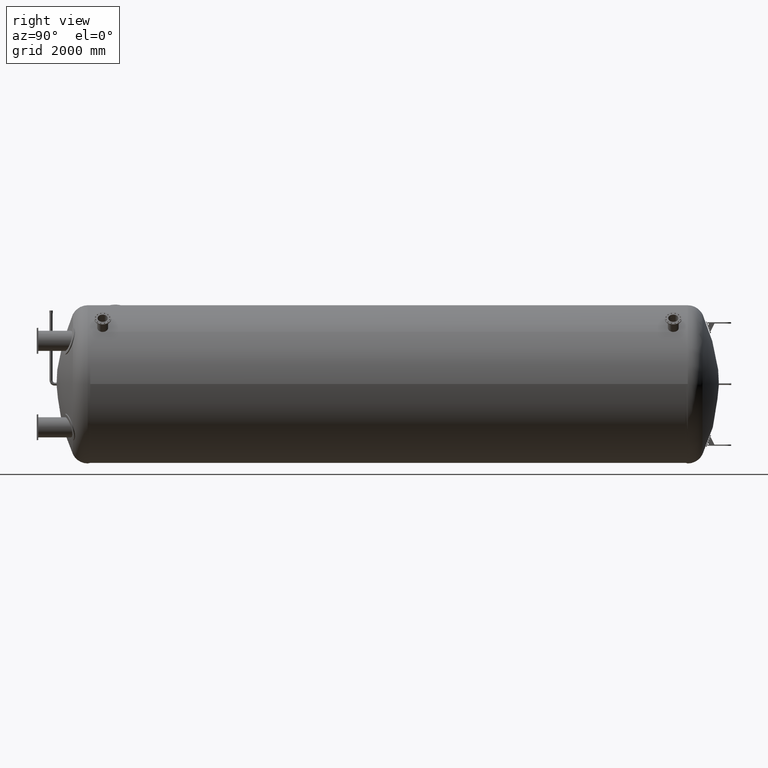
[diagram: clean part render]
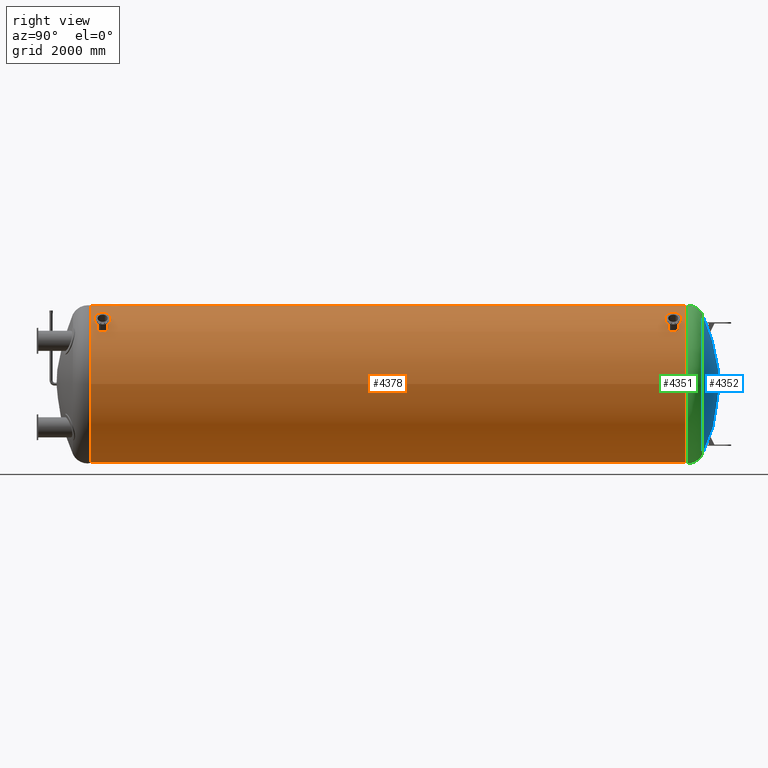
[diagram: same view with three faces highlighted in distinct colors, each labeled with its STEP entity id]
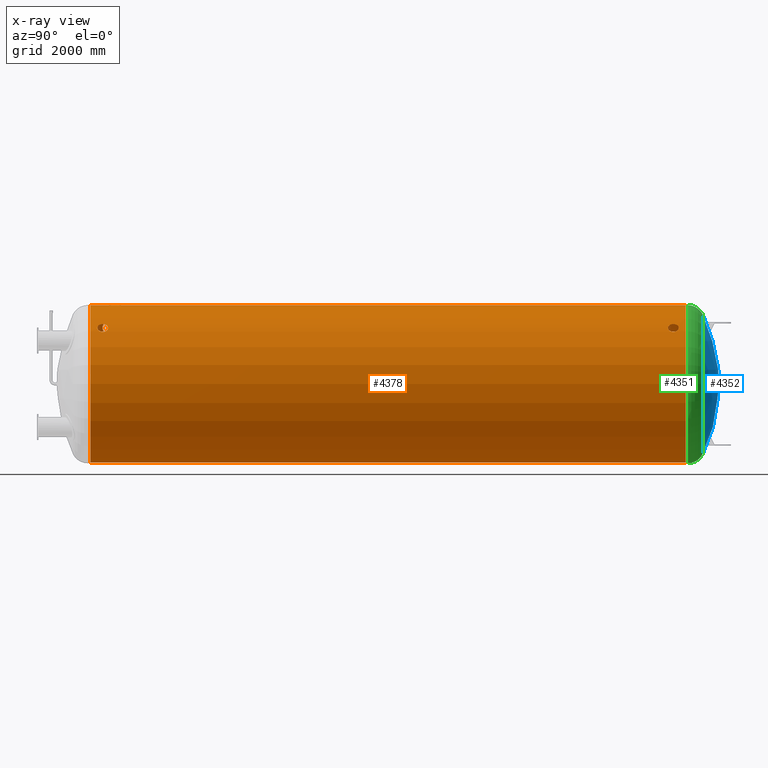
[diagram: x-ray of the same camera — body ghosted, the three highlighted faces saturated]
A machine part, right view with three faces highlighted in distinct colors.
The next image is the same camera in x-ray (body ghosted, the three faces saturated) — at least one of them is partly hidden behind the body in this view.
Their STEP definitions:

[orange] entity #4378 — the highlighted cylindrical surface (bore or boss wall) has radius 1600 mm, axis along (0, 1, 0).
#168=B_SPLINE_CURVE_WITH_KNOTS('',3,(#7192,#7193,#7194,#7195,#7196,#7197,
#7198,#7199,#7200,#7201,#7202,#7203,#7204,#7205,#7206,#7207,#7208,#7209),
 .UNSPECIFIED.,.F.,.F.,(4,2,2,2,2,2,2,2,4),(2.02658466680826,2.53323083346767,
3.03987700012707,3.5465231668718,4.05316933361652,4.55981550036125,5.06646166710597,
5.57310783376538,6.07975400042478),.UNSPECIFIED.);
#171=B_SPLINE_CURVE_WITH_KNOTS('',3,(#7249,#7250,#7251,#7252,#7253,#7254,
#7255,#7256,#7257,#7258,#7259,#7260,#7261,#7262,#7263,#7264,#7265,#7266,
#7267),.UNSPECIFIED.,.F.,.F.,(4,2,2,2,3,2,2,2,4),(6.07975400042478,6.58640016708419,
7.09304633374359,7.59969250048832,8.10633866723304,8.61298483397777,9.1196310007225,
9.6262771673819,10.1329233340413),.UNSPECIFIED.);
#172=B_SPLINE_CURVE_WITH_KNOTS('',3,(#7271,#7272,#7273,#7274,#7275,#7276,
#7277,#7278,#7279,#7280,#7281,#7282,#7283,#7284,#7285,#7286,#7287,#7288),
 .UNSPECIFIED.,.F.,.F.,(4,2,2,2,2,2,2,2,4),(2.02658466680826,2.53323083346767,
3.03987700012707,3.5465231668718,4.05316933361652,4.55981550036125,5.06646166710597,
5.57310783376538,6.07975400042478),.UNSPECIFIED.);
#175=B_SPLINE_CURVE_WITH_KNOTS('',3,(#7328,#7329,#7330,#7331,#7332,#7333,
#7334,#7335,#7336,#7337,#7338,#7339,#7340,#7341,#7342,#7343,#7344,#7345,
#7346),.UNSPECIFIED.,.F.,.F.,(4,2,2,2,3,2,2,2,4),(6.07975400042478,6.58640016708419,
7.09304633374359,7.59969250048832,8.10633866723304,8.61298483397777,9.1196310007225,
9.6262771673819,10.1329233340413),.UNSPECIFIED.);
#176=B_SPLINE_CURVE_WITH_KNOTS('',3,(#7350,#7351,#7352,#7353,#7354,#7355,
#7356,#7357,#7358,#7359,#7360,#7361,#7362,#7363,#7364,#7365,#7366,#7367),
 .UNSPECIFIED.,.F.,.F.,(4,2,2,2,2,2,2,2,4),(2.02658466680826,2.53323083346767,
3.03987700012707,3.5465231668718,4.05316933361652,4.55981550036125,5.06646166710597,
5.57310783376538,6.07975400042478),.UNSPECIFIED.);
#179=B_SPLINE_CURVE_WITH_KNOTS('',3,(#7407,#7408,#7409,#7410,#7411,#7412,
#7413,#7414,#7415,#7416,#7417,#7418,#7419,#7420,#7421,#7422,#7423,#7424,
#7425),.UNSPECIFIED.,.F.,.F.,(4,2,2,2,3,2,2,2,4),(6.07975400042478,6.58640016708419,
7.09304633374359,7.59969250048832,8.10633866723304,8.61298483397777,9.1196310007225,
9.6262771673819,10.1329233340413),.UNSPECIFIED.);
#180=B_SPLINE_CURVE_WITH_KNOTS('',3,(#7429,#7430,#7431,#7432,#7433,#7434,
#7435,#7436,#7437,#7438,#7439,#7440,#7441,#7442,#7443,#7444,#7445,#7446),
 .UNSPECIFIED.,.F.,.F.,(4,2,2,2,2,2,2,2,4),(2.02658466680826,2.53323083346767,
3.03987700012707,3.5465231668718,4.05316933361652,4.55981550036125,5.06646166710597,
5.57310783376538,6.07975400042478),.UNSPECIFIED.);
#183=B_SPLINE_CURVE_WITH_KNOTS('',3,(#7486,#7487,#7488,#7489,#7490,#7491,
#7492,#7493,#7494,#7495,#7496,#7497,#7498,#7499,#7500,#7501,#7502,#7503,
#7504),.UNSPECIFIED.,.F.,.F.,(4,2,2,2,3,2,2,2,4),(6.07975400042478,6.58640016708419,
7.09304633374359,7.59969250048832,8.10633866723304,8.61298483397777,9.1196310007225,
9.6262771673819,10.1329233340413),.UNSPECIFIED.);
#184=B_SPLINE_CURVE_WITH_KNOTS('',3,(#7508,#7509,#7510,#7511,#7512,#7513,
#7514,#7515,#7516,#7517,#7518,#7519,#7520,#7521,#7522,#7523,#7524,#7525),
 .UNSPECIFIED.,.F.,.F.,(4,2,2,2,2,2,2,2,4),(2.02658466680826,2.53323083346767,
3.03987700012707,3.5465231668718,4.05316933361652,4.55981550036125,5.06646166710597,
5.57310783376538,6.07975400042478),.UNSPECIFIED.);
#187=B_SPLINE_CURVE_WITH_KNOTS('',3,(#7565,#7566,#7567,#7568,#7569,#7570,
#7571,#7572,#7573,#7574,#7575,#7576,#7577,#7578,#7579,#7580,#7581,#7582,
#7583),.UNSPECIFIED.,.F.,.F.,(4,2,2,2,3,2,2,2,4),(6.07975400042478,6.58640016708419,
7.09304633374359,7.59969250048832,8.10633866723304,8.61298483397777,9.1196310007225,
9.6262771673819,10.1329233340413),.UNSPECIFIED.);
#188=B_SPLINE_CURVE_WITH_KNOTS('',3,(#7587,#7588,#7589,#7590,#7591,#7592,
#7593,#7594,#7595,#7596,#7597,#7598,#7599,#7600,#7601,#7602,#7603,#7604,
#7605,#7606,#7607,#7608,#7609,#7610,#7611,#7612,#7613,#7614,#7615,#7616,
#7617,#7618,#7619,#7620),.UNSPECIFIED.,.F.,.F.,(4,2,2,2,2,2,2,2,2,2,2,2,
2,2,2,2,4),(16.5119532909607,18.5759466841859,20.639940077411,22.7039334706362,
24.7679268638614,26.8319217933764,28.8959167228914,30.9599116524064,33.0239065819213,
35.0879015114363,37.1518964409513,39.2158913704663,41.2798862999813,43.3438796932065,
45.4078730864316,47.4718664796568,49.535859872882),.UNSPECIFIED.);
#191=B_SPLINE_CURVE_WITH_KNOTS('',3,(#7692,#7693,#7694,#7695,#7696,#7697,
#7698,#7699,#7700,#7701,#7702,#7703,#7704,#7705,#7706,#7707,#7708,#7709,
#7710,#7711,#7712,#7713,#7714,#7715,#7716,#7717,#7718,#7719,#7720,#7721,
#7722,#7723,#7724,#7725,#7726),.UNSPECIFIED.,.F.,.F.,(4,2,2,2,2,2,2,2,3,
2,2,2,2,2,2,2,4),(49.535859872882,51.5998532661072,53.6638466593324,55.7278400525576,
57.7918334457827,59.8558283752977,61.9198233048127,63.9838182343277,66.0478131638427,
68.1118080933577,70.1758030228726,72.2397979523876,74.3037928819026,76.3677862751278,
78.431779668353,80.4957730615782,82.5597664548034),.UNSPECIFIED.);
#192=B_SPLINE_CURVE_WITH_KNOTS('',3,(#7730,#7731,#7732,#7733,#7734,#7735,
#7736,#7737,#7738,#7739,#7740,#7741,#7742,#7743,#7744,#7745,#7746,#7747,
#7748,#7749,#7750,#7751,#7752,#7753,#7754,#7755,#7756,#7757,#7758,#7759,
#7760,#7761,#7762,#7763),.UNSPECIFIED.,.F.,.F.,(4,2,2,2,2,2,2,2,2,2,2,2,
2,2,2,2,4),(16.5119532909608,18.5759466841859,20.6399400774111,22.7039334706363,
24.7679268638615,26.8319217933765,28.8959167228915,30.9599116524065,33.0239065819215,
35.0879015114365,37.1518964409516,39.2158913704666,41.2798862999816,43.3438796932068,
45.4078730864319,47.4718664796571,49.5358598728823),.UNSPECIFIED.);
#195=B_SPLINE_CURVE_WITH_KNOTS('',3,(#7835,#7836,#7837,#7838,#7839,#7840,
#7841,#7842,#7843,#7844,#7845,#7846,#7847,#7848,#7849,#7850,#7851,#7852,
#7853,#7854,#7855,#7856,#7857,#7858,#7859,#7860,#7861,#7862,#7863,#7864,
#7865,#7866,#7867,#7868,#7869),.UNSPECIFIED.,.F.,.F.,(4,2,2,2,2,2,2,2,3,
2,2,2,2,2,2,2,4),(49.5358598728823,51.5998532661075,53.6638466593326,55.7278400525578,
57.791833445783,59.855828375298,61.919823304813,63.983818234328,66.047813163843,
68.1118080933581,70.1758030228731,72.2397979523881,74.3037928819031,76.3677862751283,
78.4317796683535,80.4957730615786,82.5597664548038),.UNSPECIFIED.);
#196=B_SPLINE_CURVE_WITH_KNOTS('',3,(#7873,#7874,#7875,#7876,#7877,#7878,
#7879,#7880,#7881,#7882,#7883,#7884,#7885,#7886,#7887,#7888,#7889,#7890,
#7891,#7892,#7893,#7894,#7895,#7896,#7897,#7898,#7899,#7900,#7901,#7902,
#7903,#7904,#7905,#7906),.UNSPECIFIED.,.F.,.F.,(4,2,2,2,2,2,2,2,2,2,2,2,
2,2,2,2,4),(16.5119532909607,18.5759466841859,20.639940077411,22.7039334706362,
24.7679268638614,26.8319217933764,28.8959167228914,30.9599116524064,33.0239065819213,
35.0879015114363,37.1518964409513,39.2158913704663,41.2798862999813,43.3438796932065,
45.4078730864316,47.4718664796568,49.535859872882),.UNSPECIFIED.);
#199=B_SPLINE_CURVE_WITH_KNOTS('',3,(#7978,#7979,#7980,#7981,#7982,#7983,
#7984,#7985,#7986,#7987,#7988,#7989,#7990,#7991,#7992,#7993,#7994,#7995,
#7996,#7997,#7998,#7999,#8000,#8001,#8002,#8003,#8004,#8005,#8006,#8007,
#8008,#8009,#8010,#8011,#8012),.UNSPECIFIED.,.F.,.F.,(4,2,2,2,2,2,2,2,3,
2,2,2,2,2,2,2,4),(49.535859872882,51.5998532661072,53.6638466593324,55.7278400525576,
57.7918334457827,59.8558283752977,61.9198233048127,63.9838182343277,66.0478131638427,
68.1118080933577,70.1758030228726,72.2397979523876,74.3037928819026,76.3677862751278,
78.431779668353,80.4957730615782,82.5597664548034),.UNSPECIFIED.);
#200=B_SPLINE_CURVE_WITH_KNOTS('',3,(#8016,#8017,#8018,#8019,#8020,#8021,
#8022,#8023,#8024,#8025,#8026,#8027,#8028,#8029,#8030,#8031,#8032,#8033,
#8034,#8035,#8036,#8037,#8038,#8039,#8040,#8041,#8042,#8043,#8044,#8045,
#8046,#8047,#8048,#8049),.UNSPECIFIED.,.F.,.F.,(4,2,2,2,2,2,2,2,2,2,2,2,
2,2,2,2,4),(16.5119532909608,18.5759466841859,20.6399400774111,22.7039334706363,
24.7679268638615,26.8319217933765,28.8959167228915,30.9599116524065,33.0239065819215,
35.0879015114365,37.1518964409516,39.2158913704666,41.2798862999816,43.3438796932068,
45.4078730864319,47.4718664796571,49.5358598728823),.UNSPECIFIED.);
#203=B_SPLINE_CURVE_WITH_KNOTS('',3,(#8121,#8122,#8123,#8124,#8125,#8126,
#8127,#8128,#8129,#8130,#8131,#8132,#8133,#8134,#8135,#8136,#8137,#8138,
#8139,#8140,#8141,#8142,#8143,#8144,#8145,#8146,#8147,#8148,#8149,#8150,
#8151,#8152,#8153,#8154,#8155),.UNSPECIFIED.,.F.,.F.,(4,2,2,2,2,2,2,2,3,
2,2,2,2,2,2,2,4),(49.5358598728823,51.5998532661075,53.6638466593326,55.7278400525578,
57.791833445783,59.855828375298,61.919823304813,63.983818234328,66.047813163843,
68.1118080933581,70.1758030228731,72.2397979523881,74.3037928819031,76.3677862751283,
78.4317796683535,80.4957730615786,82.5597664548038),.UNSPECIFIED.);
#204=B_SPLINE_CURVE_WITH_KNOTS('',3,(#8159,#8160,#8161,#8162,#8163,#8164,
#8165,#8166,#8167,#8168,#8169,#8170,#8171,#8172,#8173,#8174,#8175,#8176,
#8177,#8178,#8179,#8180,#8181,#8182,#8183,#8184,#8185,#8186,#8187,#8188,
#8189,#8190,#8191,#8192,#8193,#8194,#8195,#8196,#8197,#8198,#8199,#8200,
#8201,#8202,#8203,#8204,#8205,#8206,#8207,#8208,#8209,#8210,#8211,#8212,
#8213,#8214,#8215,#8216,#8217,#8218,#8219,#8220,#8221,#8222,#8223,#8224),
 .UNSPECIFIED.,.F.,.F.,(4,2,2,2,2,2,2,2,2,2,2,2,2,2,2,2,2,2,2,2,2,2,2,2,
2,2,2,2,2,2,2,2,4),(38.3411401194328,40.7374351001533,43.1337300808738,
45.5300250615944,47.9263200423149,50.3226150230354,52.718910003756,55.1152049844765,
57.511499965197,59.9078474994056,62.3041950336141,64.7005425678227,67.0968901020313,
69.4932376362399,71.8895851704484,74.285932704657,76.6822802388656,79.0786277730741,
81.4749753072827,83.8713228414913,86.2676703756999,88.6640179099084,91.060365444117,
93.4567129783256,95.8530605125341,98.2493554932547,100.645650473975,103.041945454696,
105.438240435416,107.834535416137,110.230830396857,112.627125377578,115.023420358298),
 .UNSPECIFIED.);
#207=B_SPLINE_CURVE_WITH_KNOTS('',3,(#8360,#8361,#8362,#8363,#8364,#8365,
#8366,#8367,#8368,#8369,#8370,#8371,#8372,#8373,#8374,#8375,#8376,#8377,
#8378,#8379,#8380,#8381,#8382,#8383,#8384,#8385,#8386,#8387,#8388,#8389,
#8390,#8391,#8392,#8393,#8394,#8395,#8396,#8397,#8398,#8399,#8400,#8401,
#8402,#8403,#8404,#8405,#8406,#8407,#8408,#8409,#8410,#8411,#8412,#8413,
#8414,#8415,#8416,#8417,#8418,#8419,#8420,#8421,#8422,#8423,#8424,#8425,
#8426),.UNSPECIFIED.,.F.,.F.,(4,2,2,2,2,2,2,2,2,2,2,2,2,2,2,2,3,2,2,2,2,
2,2,2,2,2,2,2,2,2,2,2,4),(115.023420358298,117.419715339019,119.816010319739,
122.21230530046,124.60860028118,127.004895261901,129.401190242622,131.797485223342,
134.193780204063,136.590127738271,138.98647527248,141.382822806688,143.779170340897,
146.175517875105,148.571865409314,150.968212943523,153.364560477731,155.76090801194,
158.157255546148,160.553603080357,162.949950614565,165.346298148774,167.742645682983,
170.138993217191,172.5353407514,174.93163573212,177.327930712841,179.724225693561,
182.120520674282,184.516815655002,186.913110635723,189.309405616443,191.705700597164),
 .UNSPECIFIED.);
#412=FACE_BOUND('',#878,.T.);
#413=FACE_BOUND('',#879,.T.);
#414=FACE_BOUND('',#880,.T.);
#415=FACE_BOUND('',#881,.T.);
#416=FACE_BOUND('',#882,.T.);
#417=FACE_BOUND('',#883,.T.);
#418=FACE_BOUND('',#884,.T.);
#419=FACE_BOUND('',#885,.T.);
#420=FACE_BOUND('',#886,.T.);
#421=FACE_BOUND('',#887,.T.);
#624=FACE_OUTER_BOUND('',#877,.T.);
#877=EDGE_LOOP('',(#3149,#3150,#3151,#3152,#3153,#3154));
#878=EDGE_LOOP('',(#3155,#3156));
#879=EDGE_LOOP('',(#3157,#3158));
#880=EDGE_LOOP('',(#3159,#3160));
#881=EDGE_LOOP('',(#3161,#3162));
#882=EDGE_LOOP('',(#3163,#3164));
#883=EDGE_LOOP('',(#3165,#3166));
#884=EDGE_LOOP('',(#3167,#3168));
#885=EDGE_LOOP('',(#3169,#3170));
#886=EDGE_LOOP('',(#3171,#3172));
#887=EDGE_LOOP('',(#3173,#3174));
#1266=LINE('',#8447,#1491);
#1491=VECTOR('',#5853,1600.);
#1739=CIRCLE('',#5160,1600.);
#1740=CIRCLE('',#5161,1600.);
#1741=CIRCLE('',#5163,1600.);
#1742=CIRCLE('',#5164,1600.);
#2022=VERTEX_POINT('',#7190);
#2023=VERTEX_POINT('',#7191);
#2026=VERTEX_POINT('',#7269);
#2027=VERTEX_POINT('',#7270);
#2030=VERTEX_POINT('',#7348);
#2031=VERTEX_POINT('',#7349);
#2034=VERTEX_POINT('',#7427);
#2035=VERTEX_POINT('',#7428);
#2038=VERTEX_POINT('',#7506);
#2039=VERTEX_POINT('',#7507);
#2042=VERTEX_POINT('',#7585);
#2043=VERTEX_POINT('',#7586);
#2046=VERTEX_POINT('',#7728);
#2047=VERTEX_POINT('',#7729);
#2050=VERTEX_POINT('',#7871);
#2051=VERTEX_POINT('',#7872);
#2054=VERTEX_POINT('',#8014);
#2055=VERTEX_POINT('',#8015);
#2058=VERTEX_POINT('',#8157);
#2059=VERTEX_POINT('',#8158);
#2066=VERTEX_POINT('',#8438);
#2067=VERTEX_POINT('',#8439);
#2068=VERTEX_POINT('',#8443);
#2069=VERTEX_POINT('',#8444);
#2435=EDGE_CURVE('',#2022,#2023,#168,.T.);
#2439=EDGE_CURVE('',#2023,#2022,#171,.T.);
#2440=EDGE_CURVE('',#2026,#2027,#172,.T.);
#2444=EDGE_CURVE('',#2027,#2026,#175,.T.);
#2445=EDGE_CURVE('',#2030,#2031,#176,.T.);
#2449=EDGE_CURVE('',#2031,#2030,#179,.T.);
#2450=EDGE_CURVE('',#2034,#2035,#180,.T.);
#2454=EDGE_CURVE('',#2035,#2034,#183,.T.);
#2455=EDGE_CURVE('',#2038,#2039,#184,.T.);
#2459=EDGE_CURVE('',#2039,#2038,#187,.T.);
#2460=EDGE_CURVE('',#2042,#2043,#188,.T.);
#2464=EDGE_CURVE('',#2043,#2042,#191,.T.);
#2465=EDGE_CURVE('',#2046,#2047,#192,.T.);
#2469=EDGE_CURVE('',#2047,#2046,#195,.T.);
#2470=EDGE_CURVE('',#2050,#2051,#196,.T.);
#2474=EDGE_CURVE('',#2051,#2050,#199,.T.);
#2475=EDGE_CURVE('',#2054,#2055,#200,.T.);
#2479=EDGE_CURVE('',#2055,#2054,#203,.T.);
#2480=EDGE_CURVE('',#2058,#2059,#204,.T.);
#2484=EDGE_CURVE('',#2059,#2058,#207,.T.);
#2490=EDGE_CURVE('',#2066,#2067,#1739,.T.);
#2491=EDGE_CURVE('',#2067,#2066,#1740,.T.);
#2492=EDGE_CURVE('',#2068,#2069,#1741,.T.);
#2493=EDGE_CURVE('',#2069,#2068,#1742,.T.);
#2494=EDGE_CURVE('',#2069,#2067,#1266,.T.);
#3149=ORIENTED_EDGE('',*,*,#2492,.F.);
#3150=ORIENTED_EDGE('',*,*,#2493,.F.);
#3151=ORIENTED_EDGE('',*,*,#2494,.T.);
#3152=ORIENTED_EDGE('',*,*,#2491,.T.);
#3153=ORIENTED_EDGE('',*,*,#2490,.T.);
#3154=ORIENTED_EDGE('',*,*,#2494,.F.);
#3155=ORIENTED_EDGE('',*,*,#2435,.T.);
#3156=ORIENTED_EDGE('',*,*,#2439,.T.);
#3157=ORIENTED_EDGE('',*,*,#2440,.T.);
#3158=ORIENTED_EDGE('',*,*,#2444,.T.);
#3159=ORIENTED_EDGE('',*,*,#2445,.T.);
#3160=ORIENTED_EDGE('',*,*,#2449,.T.);
#3161=ORIENTED_EDGE('',*,*,#2450,.T.);
#3162=ORIENTED_EDGE('',*,*,#2454,.T.);
#3163=ORIENTED_EDGE('',*,*,#2455,.T.);
#3164=ORIENTED_EDGE('',*,*,#2459,.T.);
#3165=ORIENTED_EDGE('',*,*,#2460,.T.);
#3166=ORIENTED_EDGE('',*,*,#2464,.T.);
#3167=ORIENTED_EDGE('',*,*,#2465,.T.);
#3168=ORIENTED_EDGE('',*,*,#2469,.T.);
#3169=ORIENTED_EDGE('',*,*,#2470,.T.);
#3170=ORIENTED_EDGE('',*,*,#2474,.T.);
#3171=ORIENTED_EDGE('',*,*,#2475,.T.);
#3172=ORIENTED_EDGE('',*,*,#2479,.T.);
#3173=ORIENTED_EDGE('',*,*,#2480,.T.);
#3174=ORIENTED_EDGE('',*,*,#2484,.T.);
#4156=CYLINDRICAL_SURFACE('',#5162,1600.);
#4378=ADVANCED_FACE('',(#624,#412,#413,#414,#415,#416,#417,#418,#419,#420,
#421),#4156,.T.);
#5160=AXIS2_PLACEMENT_3D('',#8440,#5843,#5844);
#5161=AXIS2_PLACEMENT_3D('',#8441,#5845,#5846);
#5162=AXIS2_PLACEMENT_3D('',#8442,#5847,#5848);
#5163=AXIS2_PLACEMENT_3D('',#8445,#5849,#5850);
#5164=AXIS2_PLACEMENT_3D('',#8446,#5851,#5852);
#5843=DIRECTION('center_axis',(0.,1.,0.));
#5844=DIRECTION('ref_axis',(1.,0.,0.));
#5845=DIRECTION('center_axis',(0.,1.,0.));
#5846=DIRECTION('ref_axis',(1.,0.,0.));
#5847=DIRECTION('center_axis',(0.,1.,0.));
#5848=DIRECTION('ref_axis',(-1.,0.,0.));
#5849=DIRECTION('center_axis',(0.,1.,0.));
#5850=DIRECTION('ref_axis',(1.,0.,0.));
#5851=DIRECTION('center_axis',(0.,1.,0.));
#5852=DIRECTION('ref_axis',(1.,0.,0.));
#5853=DIRECTION('',(0.,-1.,0.));
#7190=CARTESIAN_POINT('',(-1503.50819325745,8933.45,547.23222932107));
#7191=CARTESIAN_POINT('',(-1503.50819325745,8906.55,547.23222932107));
#7192=CARTESIAN_POINT('Ctrl Pts',(-1503.50819325745,8933.45,547.23222932107));
#7193=CARTESIAN_POINT('Ctrl Pts',(-1502.930582609,8933.45,548.819201534935));
#7194=CARTESIAN_POINT('Ctrl Pts',(-1502.31170240443,8933.1124872185,550.510939186463));
#7195=CARTESIAN_POINT('Ctrl Pts',(-1501.16829876398,8931.73986306096,553.621246098193));
#7196=CARTESIAN_POINT('Ctrl Pts',(-1500.64391869901,8930.70475212544,555.039868256604));
#7197=CARTESIAN_POINT('Ctrl Pts',(-1499.81372049875,8928.31642028828,557.279310477558));
#7198=CARTESIAN_POINT('Ctrl Pts',(-1499.45258872189,8926.8040029696,558.249411309946));
#7199=CARTESIAN_POINT('Ctrl Pts',(-1498.97310591065,8923.4902034393,559.5356099564));
#7200=CARTESIAN_POINT('Ctrl Pts',(-1498.85489865861,8921.68882055582,559.851759635619));
#7201=CARTESIAN_POINT('Ctrl Pts',(-1498.85489865861,8918.31117944418,559.851759635619));
#7202=CARTESIAN_POINT('Ctrl Pts',(-1498.97310591065,8916.5097965607,559.5356099564));
#7203=CARTESIAN_POINT('Ctrl Pts',(-1499.45258872189,8913.1959970304,558.249411309946));
#7204=CARTESIAN_POINT('Ctrl Pts',(-1499.81372049875,8911.68357971172,557.279310477558));
#7205=CARTESIAN_POINT('Ctrl Pts',(-1500.64391869901,8909.29524787456,555.039868256604));
#7206=CARTESIAN_POINT('Ctrl Pts',(-1501.16829876398,8908.26013693904,553.621246098193));
#7207=CARTESIAN_POINT('Ctrl Pts',(-1502.31170240443,8906.8875127815,550.510939186463));
#7208=CARTESIAN_POINT('Ctrl Pts',(-1502.930582609,8906.55,548.819201534935));
#7209=CARTESIAN_POINT('Ctrl Pts',(-1503.50819325745,8906.55,547.23222932107));
#7249=CARTESIAN_POINT('Ctrl Pts',(-1503.50819325745,8906.55,547.23222932107));
#7250=CARTESIAN_POINT('Ctrl Pts',(-1504.08580390591,8906.55,545.645257107206));
#7251=CARTESIAN_POINT('Ctrl Pts',(-1504.69914216548,8906.8875127815,543.951502352657));
#7252=CARTESIAN_POINT('Ctrl Pts',(-1505.82251090565,8908.26013693904,540.83390333358));
#7253=CARTESIAN_POINT('Ctrl Pts',(-1506.33268521706,8909.29524787456,539.410110703718));
#7254=CARTESIAN_POINT('Ctrl Pts',(-1507.1362022113,8911.68357971172,537.160957317955));
#7255=CARTESIAN_POINT('Ctrl Pts',(-1507.48312801561,8913.1959970304,536.185685934412));
#7256=CARTESIAN_POINT('Ctrl Pts',(-1507.94257542602,8916.5097965607,534.892194998424));
#7257=CARTESIAN_POINT('Ctrl Pts',(-1508.05524051407,8918.31117944418,534.574028136478));
#7258=CARTESIAN_POINT('Ctrl Pts',(-1508.05524051407,8920.,534.574028136478));
#7259=CARTESIAN_POINT('Ctrl Pts',(-1508.05524051407,8921.68882055582,534.574028136478));
#7260=CARTESIAN_POINT('Ctrl Pts',(-1507.94257542602,8923.4902034393,534.892194998424));
#7261=CARTESIAN_POINT('Ctrl Pts',(-1507.48312801561,8926.8040029696,536.185685934412));
#7262=CARTESIAN_POINT('Ctrl Pts',(-1507.1362022113,8928.31642028828,537.160957317955));
#7263=CARTESIAN_POINT('Ctrl Pts',(-1506.33268521706,8930.70475212544,539.410110703718));
#7264=CARTESIAN_POINT('Ctrl Pts',(-1505.82251090565,8931.73986306096,540.83390333358));
#7265=CARTESIAN_POINT('Ctrl Pts',(-1504.69914216548,8933.1124872185,543.951502352657));
#7266=CARTESIAN_POINT('Ctrl Pts',(-1504.08580390591,8933.45,545.645257107206));
#7267=CARTESIAN_POINT('Ctrl Pts',(-1503.50819325745,8933.45,547.23222932107));
#7269=CARTESIAN_POINT('',(-1503.50819325745,5973.45,547.23222932107));
#7270=CARTESIAN_POINT('',(-1503.50819325745,5946.55,547.23222932107));
#7271=CARTESIAN_POINT('Ctrl Pts',(-1503.50819325745,5973.45,547.23222932107));
#7272=CARTESIAN_POINT('Ctrl Pts',(-1502.930582609,5973.45,548.819201534935));
#7273=CARTESIAN_POINT('Ctrl Pts',(-1502.31170240443,5973.1124872185,550.510939186463));
#7274=CARTESIAN_POINT('Ctrl Pts',(-1501.16829876398,5971.73986306096,553.621246098193));
#7275=CARTESIAN_POINT('Ctrl Pts',(-1500.64391869901,5970.70475212543,555.039868256604));
#7276=CARTESIAN_POINT('Ctrl Pts',(-1499.81372049875,5968.31642028828,557.279310477558));
#7277=CARTESIAN_POINT('Ctrl Pts',(-1499.45258872189,5966.8040029696,558.249411309946));
#7278=CARTESIAN_POINT('Ctrl Pts',(-1498.97310591065,5963.4902034393,559.5356099564));
#7279=CARTESIAN_POINT('Ctrl Pts',(-1498.85489865861,5961.68882055582,559.851759635619));
#7280=CARTESIAN_POINT('Ctrl Pts',(-1498.85489865861,5958.31117944418,559.851759635619));
#7281=CARTESIAN_POINT('Ctrl Pts',(-1498.97310591065,5956.5097965607,559.5356099564));
#7282=CARTESIAN_POINT('Ctrl Pts',(-1499.45258872189,5953.1959970304,558.249411309946));
#7283=CARTESIAN_POINT('Ctrl Pts',(-1499.81372049875,5951.68357971172,557.279310477558));
#7284=CARTESIAN_POINT('Ctrl Pts',(-1500.64391869901,5949.29524787457,555.039868256604));
#7285=CARTESIAN_POINT('Ctrl Pts',(-1501.16829876398,5948.26013693904,553.621246098193));
#7286=CARTESIAN_POINT('Ctrl Pts',(-1502.31170240443,5946.8875127815,550.510939186463));
#7287=CARTESIAN_POINT('Ctrl Pts',(-1502.930582609,5946.55,548.819201534935));
#7288=CARTESIAN_POINT('Ctrl Pts',(-1503.50819325745,5946.55,547.23222932107));
#7328=CARTESIAN_POINT('Ctrl Pts',(-1503.50819325745,5946.55,547.23222932107));
#7329=CARTESIAN_POINT('Ctrl Pts',(-1504.08580390591,5946.55,545.645257107206));
#7330=CARTESIAN_POINT('Ctrl Pts',(-1504.69914216548,5946.8875127815,543.951502352657));
#7331=CARTESIAN_POINT('Ctrl Pts',(-1505.82251090565,5948.26013693904,540.83390333358));
#7332=CARTESIAN_POINT('Ctrl Pts',(-1506.33268521706,5949.29524787457,539.410110703718));
#7333=CARTESIAN_POINT('Ctrl Pts',(-1507.1362022113,5951.68357971172,537.160957317955));
#7334=CARTESIAN_POINT('Ctrl Pts',(-1507.48312801561,5953.1959970304,536.185685934412));
#7335=CARTESIAN_POINT('Ctrl Pts',(-1507.94257542602,5956.5097965607,534.892194998424));
#7336=CARTESIAN_POINT('Ctrl Pts',(-1508.05524051407,5958.31117944418,534.574028136478));
#7337=CARTESIAN_POINT('Ctrl Pts',(-1508.05524051407,5960.,534.574028136478));
#7338=CARTESIAN_POINT('Ctrl Pts',(-1508.05524051407,5961.68882055582,534.574028136478));
#7339=CARTESIAN_POINT('Ctrl Pts',(-1507.94257542602,5963.4902034393,534.892194998424));
#7340=CARTESIAN_POINT('Ctrl Pts',(-1507.48312801561,5966.8040029696,536.185685934412));
#7341=CARTESIAN_POINT('Ctrl Pts',(-1507.1362022113,5968.31642028828,537.160957317955));
#7342=CARTESIAN_POINT('Ctrl Pts',(-1506.33268521706,5970.70475212543,539.410110703718));
#7343=CARTESIAN_POINT('Ctrl Pts',(-1505.82251090565,5971.73986306096,540.83390333358));
#7344=CARTESIAN_POINT('Ctrl Pts',(-1504.69914216548,5973.1124872185,543.951502352657));
#7345=CARTESIAN_POINT('Ctrl Pts',(-1504.08580390591,5973.45,545.645257107206));
#7346=CARTESIAN_POINT('Ctrl Pts',(-1503.50819325745,5973.45,547.23222932107));
#7348=CARTESIAN_POINT('',(-1503.50819325745,3093.45,547.23222932107));
#7349=CARTESIAN_POINT('',(-1503.50819325745,3066.55,547.23222932107));
#7350=CARTESIAN_POINT('Ctrl Pts',(-1503.50819325745,3093.45,547.23222932107));
#7351=CARTESIAN_POINT('Ctrl Pts',(-1502.930582609,3093.45,548.819201534935));
#7352=CARTESIAN_POINT('Ctrl Pts',(-1502.31170240443,3093.1124872185,550.510939186463));
#7353=CARTESIAN_POINT('Ctrl Pts',(-1501.16829876398,3091.73986306095,553.621246098193));
#7354=CARTESIAN_POINT('Ctrl Pts',(-1500.64391869901,3090.70475212543,555.039868256604));
#7355=CARTESIAN_POINT('Ctrl Pts',(-1499.81372049875,3088.31642028828,557.279310477558));
#7356=CARTESIAN_POINT('Ctrl Pts',(-1499.45258872189,3086.8040029696,558.249411309946));
#7357=CARTESIAN_POINT('Ctrl Pts',(-1498.97310591065,3083.4902034393,559.5356099564));
#7358=CARTESIAN_POINT('Ctrl Pts',(-1498.85489865861,3081.68882055582,559.851759635619));
#7359=CARTESIAN_POINT('Ctrl Pts',(-1498.85489865861,3078.31117944418,559.851759635619));
#7360=CARTESIAN_POINT('Ctrl Pts',(-1498.97310591065,3076.5097965607,559.5356099564));
#7361=CARTESIAN_POINT('Ctrl Pts',(-1499.45258872189,3073.1959970304,558.249411309946));
#7362=CARTESIAN_POINT('Ctrl Pts',(-1499.81372049875,3071.68357971172,557.279310477558));
#7363=CARTESIAN_POINT('Ctrl Pts',(-1500.64391869901,3069.29524787457,555.039868256604));
#7364=CARTESIAN_POINT('Ctrl Pts',(-1501.16829876398,3068.26013693905,553.621246098193));
#7365=CARTESIAN_POINT('Ctrl Pts',(-1502.31170240443,3066.8875127815,550.510939186463));
#7366=CARTESIAN_POINT('Ctrl Pts',(-1502.930582609,3066.55,548.819201534935));
#7367=CARTESIAN_POINT('Ctrl Pts',(-1503.50819325745,3066.55,547.23222932107));
#7407=CARTESIAN_POINT('Ctrl Pts',(-1503.50819325745,3066.55,547.23222932107));
#7408=CARTESIAN_POINT('Ctrl Pts',(-1504.08580390591,3066.55,545.645257107206));
#7409=CARTESIAN_POINT('Ctrl Pts',(-1504.69914216548,3066.8875127815,543.951502352657));
#7410=CARTESIAN_POINT('Ctrl Pts',(-1505.82251090565,3068.26013693905,540.83390333358));
#7411=CARTESIAN_POINT('Ctrl Pts',(-1506.33268521706,3069.29524787457,539.410110703718));
#7412=CARTESIAN_POINT('Ctrl Pts',(-1507.1362022113,3071.68357971172,537.160957317955));
#7413=CARTESIAN_POINT('Ctrl Pts',(-1507.48312801561,3073.1959970304,536.185685934412));
#7414=CARTESIAN_POINT('Ctrl Pts',(-1507.94257542602,3076.5097965607,534.892194998424));
#7415=CARTESIAN_POINT('Ctrl Pts',(-1508.05524051407,3078.31117944418,534.574028136478));
#7416=CARTESIAN_POINT('Ctrl Pts',(-1508.05524051407,3080.,534.574028136478));
#7417=CARTESIAN_POINT('Ctrl Pts',(-1508.05524051407,3081.68882055582,534.574028136478));
#7418=CARTESIAN_POINT('Ctrl Pts',(-1507.94257542602,3083.4902034393,534.892194998424));
#7419=CARTESIAN_POINT('Ctrl Pts',(-1507.48312801561,3086.8040029696,536.185685934412));
#7420=CARTESIAN_POINT('Ctrl Pts',(-1507.1362022113,3088.31642028828,537.160957317955));
#7421=CARTESIAN_POINT('Ctrl Pts',(-1506.33268521706,3090.70475212543,539.410110703718));
#7422=CARTESIAN_POINT('Ctrl Pts',(-1505.82251090565,3091.73986306095,540.83390333358));
#7423=CARTESIAN_POINT('Ctrl Pts',(-1504.69914216548,3093.1124872185,543.951502352657));
#7424=CARTESIAN_POINT('Ctrl Pts',(-1504.08580390591,3093.45,545.645257107206));
#7425=CARTESIAN_POINT('Ctrl Pts',(-1503.50819325745,3093.45,547.23222932107));
#7427=CARTESIAN_POINT('',(-1503.50819325745,11813.45,547.23222932107));
#7428=CARTESIAN_POINT('',(-1503.50819325745,11786.55,547.23222932107));
#7429=CARTESIAN_POINT('Ctrl Pts',(-1503.50819325745,11813.45,547.23222932107));
#7430=CARTESIAN_POINT('Ctrl Pts',(-1502.930582609,11813.45,548.819201534935));
#7431=CARTESIAN_POINT('Ctrl Pts',(-1502.31170240443,11813.1124872185,550.510939186461));
#7432=CARTESIAN_POINT('Ctrl Pts',(-1501.16829876398,11811.739863061,553.621246098192));
#7433=CARTESIAN_POINT('Ctrl Pts',(-1500.64391869901,11810.7047521254,555.039868256604));
#7434=CARTESIAN_POINT('Ctrl Pts',(-1499.81372049875,11808.3164202883,557.279310477558));
#7435=CARTESIAN_POINT('Ctrl Pts',(-1499.45258872189,11806.8040029696,558.249411309946));
#7436=CARTESIAN_POINT('Ctrl Pts',(-1498.97310591065,11803.4902034393,559.535609956401));
#7437=CARTESIAN_POINT('Ctrl Pts',(-1498.85489865861,11801.6888205558,559.851759635619));
#7438=CARTESIAN_POINT('Ctrl Pts',(-1498.85489865861,11798.3111794442,559.851759635619));
#7439=CARTESIAN_POINT('Ctrl Pts',(-1498.97310591065,11796.5097965607,559.535609956401));
#7440=CARTESIAN_POINT('Ctrl Pts',(-1499.45258872189,11793.1959970304,558.249411309946));
#7441=CARTESIAN_POINT('Ctrl Pts',(-1499.81372049875,11791.6835797117,557.279310477558));
#7442=CARTESIAN_POINT('Ctrl Pts',(-1500.64391869901,11789.2952478746,555.039868256604));
#7443=CARTESIAN_POINT('Ctrl Pts',(-1501.16829876398,11788.260136939,553.621246098192));
#7444=CARTESIAN_POINT('Ctrl Pts',(-1502.31170240443,11786.8875127815,550.510939186461));
#7445=CARTESIAN_POINT('Ctrl Pts',(-1502.930582609,11786.55,548.819201534935));
#7446=CARTESIAN_POINT('Ctrl Pts',(-1503.50819325745,11786.55,547.23222932107));
#7486=CARTESIAN_POINT('Ctrl Pts',(-1503.50819325745,11786.55,547.23222932107));
#7487=CARTESIAN_POINT('Ctrl Pts',(-1504.08580390591,11786.55,545.645257107206));
#7488=CARTESIAN_POINT('Ctrl Pts',(-1504.69914216548,11786.8875127815,543.951502352659));
#7489=CARTESIAN_POINT('Ctrl Pts',(-1505.82251090565,11788.260136939,540.833903333581));
#7490=CARTESIAN_POINT('Ctrl Pts',(-1506.33268521706,11789.2952478746,539.410110703718));
#7491=CARTESIAN_POINT('Ctrl Pts',(-1507.1362022113,11791.6835797117,537.160957317955));
#7492=CARTESIAN_POINT('Ctrl Pts',(-1507.48312801561,11793.1959970304,536.185685934412));
#7493=CARTESIAN_POINT('Ctrl Pts',(-1507.94257542602,11796.5097965607,534.892194998423));
#7494=CARTESIAN_POINT('Ctrl Pts',(-1508.05524051407,11798.3111794442,534.574028136478));
#7495=CARTESIAN_POINT('Ctrl Pts',(-1508.05524051407,11800.,534.574028136478));
#7496=CARTESIAN_POINT('Ctrl Pts',(-1508.05524051407,11801.6888205558,534.574028136478));
#7497=CARTESIAN_POINT('Ctrl Pts',(-1507.94257542602,11803.4902034393,534.892194998423));
#7498=CARTESIAN_POINT('Ctrl Pts',(-1507.48312801561,11806.8040029696,536.185685934412));
#7499=CARTESIAN_POINT('Ctrl Pts',(-1507.1362022113,11808.3164202883,537.160957317955));
#7500=CARTESIAN_POINT('Ctrl Pts',(-1506.33268521706,11810.7047521254,539.410110703718));
#7501=CARTESIAN_POINT('Ctrl Pts',(-1505.82251090565,11811.739863061,540.833903333581));
#7502=CARTESIAN_POINT('Ctrl Pts',(-1504.69914216548,11813.1124872185,543.951502352659));
#7503=CARTESIAN_POINT('Ctrl Pts',(-1504.08580390591,11813.45,545.645257107206));
#7504=CARTESIAN_POINT('Ctrl Pts',(-1503.50819325745,11813.45,547.23222932107));
#7506=CARTESIAN_POINT('',(-1503.50819325745,213.45,547.23222932107));
#7507=CARTESIAN_POINT('',(-1503.50819325745,186.55,547.23222932107));
#7508=CARTESIAN_POINT('Ctrl Pts',(-1503.50819325745,213.45,547.23222932107));
#7509=CARTESIAN_POINT('Ctrl Pts',(-1502.930582609,213.45,548.819201534935));
#7510=CARTESIAN_POINT('Ctrl Pts',(-1502.31170240443,213.112487218501,550.510939186462));
#7511=CARTESIAN_POINT('Ctrl Pts',(-1501.16829876398,211.739863060954,553.621246098193));
#7512=CARTESIAN_POINT('Ctrl Pts',(-1500.64391869901,210.704752125434,555.039868256604));
#7513=CARTESIAN_POINT('Ctrl Pts',(-1499.81372049875,208.316420288283,557.279310477558));
#7514=CARTESIAN_POINT('Ctrl Pts',(-1499.45258872189,206.804002969602,558.249411309946));
#7515=CARTESIAN_POINT('Ctrl Pts',(-1498.97310591065,203.490203439302,559.5356099564));
#7516=CARTESIAN_POINT('Ctrl Pts',(-1498.85489865861,201.688820555816,559.851759635619));
#7517=CARTESIAN_POINT('Ctrl Pts',(-1498.85489865861,198.311179444184,559.851759635619));
#7518=CARTESIAN_POINT('Ctrl Pts',(-1498.97310591065,196.509796560698,559.5356099564));
#7519=CARTESIAN_POINT('Ctrl Pts',(-1499.45258872189,193.195997030398,558.249411309946));
#7520=CARTESIAN_POINT('Ctrl Pts',(-1499.81372049875,191.683579711717,557.279310477558));
#7521=CARTESIAN_POINT('Ctrl Pts',(-1500.64391869901,189.295247874566,555.039868256604));
#7522=CARTESIAN_POINT('Ctrl Pts',(-1501.16829876398,188.260136939046,553.621246098193));
#7523=CARTESIAN_POINT('Ctrl Pts',(-1502.31170240443,186.887512781499,550.510939186462));
#7524=CARTESIAN_POINT('Ctrl Pts',(-1502.930582609,186.55,548.819201534935));
#7525=CARTESIAN_POINT('Ctrl Pts',(-1503.50819325745,186.55,547.23222932107));
#7565=CARTESIAN_POINT('Ctrl Pts',(-1503.50819325745,186.55,547.23222932107));
#7566=CARTESIAN_POINT('Ctrl Pts',(-1504.08580390591,186.55,545.645257107206));
#7567=CARTESIAN_POINT('Ctrl Pts',(-1504.69914216548,186.887512781499,543.951502352657));
#7568=CARTESIAN_POINT('Ctrl Pts',(-1505.82251090565,188.260136939046,540.83390333358));
#7569=CARTESIAN_POINT('Ctrl Pts',(-1506.33268521706,189.295247874566,539.410110703718));
#7570=CARTESIAN_POINT('Ctrl Pts',(-1507.1362022113,191.683579711717,537.160957317955));
#7571=CARTESIAN_POINT('Ctrl Pts',(-1507.48312801561,193.195997030398,536.185685934411));
#7572=CARTESIAN_POINT('Ctrl Pts',(-1507.94257542602,196.509796560698,534.892194998424));
#7573=CARTESIAN_POINT('Ctrl Pts',(-1508.05524051407,198.311179444184,534.574028136478));
#7574=CARTESIAN_POINT('Ctrl Pts',(-1508.05524051407,200.,534.574028136478));
#7575=CARTESIAN_POINT('Ctrl Pts',(-1508.05524051407,201.688820555816,534.574028136478));
#7576=CARTESIAN_POINT('Ctrl Pts',(-1507.94257542602,203.490203439302,534.892194998424));
#7577=CARTESIAN_POINT('Ctrl Pts',(-1507.48312801561,206.804002969602,536.185685934411));
#7578=CARTESIAN_POINT('Ctrl Pts',(-1507.1362022113,208.316420288283,537.160957317955));
#7579=CARTESIAN_POINT('Ctrl Pts',(-1506.33268521706,210.704752125434,539.410110703718));
#7580=CARTESIAN_POINT('Ctrl Pts',(-1505.82251090565,211.739863060954,540.83390333358));
#7581=CARTESIAN_POINT('Ctrl Pts',(-1504.69914216548,213.112487218501,543.951502352657));
#7582=CARTESIAN_POINT('Ctrl Pts',(-1504.08580390591,213.45,545.645257107206));
#7583=CARTESIAN_POINT('Ctrl Pts',(-1503.50819325745,213.45,547.23222932107));
#7585=CARTESIAN_POINT('',(1131.37084989848,11859.55,1131.37084989848));
#7586=CARTESIAN_POINT('',(1131.37084989848,11640.45,1131.37084989848));
#7587=CARTESIAN_POINT('Ctrl Pts',(1131.37084989848,11859.55,1131.37084989848));
#7588=CARTESIAN_POINT('Ctrl Pts',(1136.23572898072,11859.55,1126.50597081623));
#7589=CARTESIAN_POINT('Ctrl Pts',(1141.23408302155,11858.8914436564,1121.44319391715));
#7590=CARTESIAN_POINT('Ctrl Pts',(1151.10837962017,11856.1180725824,1111.30534408926));
#7591=CARTESIAN_POINT('Ctrl Pts',(1155.98449146008,11854.0038583947,1106.23027176327));
#7592=CARTESIAN_POINT('Ctrl Pts',(1165.27660627777,11848.413197903,1096.43786395961));
#7593=CARTESIAN_POINT('Ctrl Pts',(1169.7002656561,11844.9323004904,1091.71292823753));
#7594=CARTESIAN_POINT('Ctrl Pts',(1177.83580565907,11836.8887407918,1082.93058136909));
#7595=CARTESIAN_POINT('Ctrl Pts',(1181.54778747219,11832.3255719777,1078.87372789322));
#7596=CARTESIAN_POINT('Ctrl Pts',(1188.090442776,11822.6015201613,1071.66449723701));
#7597=CARTESIAN_POINT('Ctrl Pts',(1191.14457619249,11817.1081223773,1068.2653348777));
#7598=CARTESIAN_POINT('Ctrl Pts',(1196.50854043349,11805.145370948,1062.25399023209));
#7599=CARTESIAN_POINT('Ctrl Pts',(1198.81906104389,11798.6763401294,1059.64178103626));
#7600=CARTESIAN_POINT('Ctrl Pts',(1202.52169116823,11785.1815500421,1055.43802638599));
#7601=CARTESIAN_POINT('Ctrl Pts',(1203.91697977868,11778.1450027457,1053.84336474584));
#7602=CARTESIAN_POINT('Ctrl Pts',(1205.74598616797,11763.9942789284,1051.75023102358));
#7603=CARTESIAN_POINT('Ctrl Pts',(1206.17936629831,11756.8799830984,1051.25227054034));
#7604=CARTESIAN_POINT('Ctrl Pts',(1206.17936629831,11743.1200169016,1051.25227054034));
#7605=CARTESIAN_POINT('Ctrl Pts',(1205.74598616797,11736.0057210716,1051.75023102358));
#7606=CARTESIAN_POINT('Ctrl Pts',(1203.91697977868,11721.8549972543,1053.84336474584));
#7607=CARTESIAN_POINT('Ctrl Pts',(1202.52169116823,11714.8184499579,1055.43802638599));
#7608=CARTESIAN_POINT('Ctrl Pts',(1198.81906104389,11701.3236598706,1059.64178103626));
#7609=CARTESIAN_POINT('Ctrl Pts',(1196.50854043349,11694.854629052,1062.25399023209));
#7610=CARTESIAN_POINT('Ctrl Pts',(1191.14457619249,11682.8918776227,1068.2653348777));
#7611=CARTESIAN_POINT('Ctrl Pts',(1188.090442776,11677.3984798387,1071.66449723701));
#7612=CARTESIAN_POINT('Ctrl Pts',(1181.54778747219,11667.6744280223,1078.87372789322));
#7613=CARTESIAN_POINT('Ctrl Pts',(1177.83580565907,11663.1112592082,1082.93058136909));
#7614=CARTESIAN_POINT('Ctrl Pts',(1169.7002656561,11655.0676995096,1091.71292823753));
#7615=CARTESIAN_POINT('Ctrl Pts',(1165.27660627777,11651.586802097,1096.43786395961));
#7616=CARTESIAN_POINT('Ctrl Pts',(1155.98449146008,11645.9961416053,1106.23027176327));
#7617=CARTESIAN_POINT('Ctrl Pts',(1151.10837962017,11643.8819274176,1111.30534408926));
#7618=CARTESIAN_POINT('Ctrl Pts',(1141.23408302155,11641.1085563436,1121.44319391715));
#7619=CARTESIAN_POINT('Ctrl Pts',(1136.23572898072,11640.45,1126.50597081623));
#7620=CARTESIAN_POINT('Ctrl Pts',(1131.37084989848,11640.45,1131.37084989848));
#7692=CARTESIAN_POINT('Ctrl Pts',(1131.37084989848,11640.45,1131.37084989848));
#7693=CARTESIAN_POINT('Ctrl Pts',(1126.50597081623,11640.45,1136.23572898072));
#7694=CARTESIAN_POINT('Ctrl Pts',(1121.44319391715,11641.1085563436,1141.23408302155));
#7695=CARTESIAN_POINT('Ctrl Pts',(1111.30534408926,11643.8819274176,1151.10837962017));
#7696=CARTESIAN_POINT('Ctrl Pts',(1106.23027176327,11645.9961416053,1155.98449146008));
#7697=CARTESIAN_POINT('Ctrl Pts',(1096.43786395961,11651.586802097,1165.27660627777));
#7698=CARTESIAN_POINT('Ctrl Pts',(1091.71292823753,11655.0676995096,1169.7002656561));
#7699=CARTESIAN_POINT('Ctrl Pts',(1082.93058136909,11663.1112592082,1177.83580565907));
#7700=CARTESIAN_POINT('Ctrl Pts',(1078.87372789322,11667.6744280223,1181.54778747219));
#7701=CARTESIAN_POINT('Ctrl Pts',(1071.66449723701,11677.3984798387,1188.090442776));
#7702=CARTESIAN_POINT('Ctrl Pts',(1068.2653348777,11682.8918776227,1191.14457619249));
#7703=CARTESIAN_POINT('Ctrl Pts',(1062.25399023209,11694.854629052,1196.50854043349));
#7704=CARTESIAN_POINT('Ctrl Pts',(1059.64178103626,11701.3236598706,1198.81906104389));
#7705=CARTESIAN_POINT('Ctrl Pts',(1055.43802638599,11714.8184499579,1202.52169116823));
#7706=CARTESIAN_POINT('Ctrl Pts',(1053.84336474584,11721.8549972543,1203.91697977868));
#7707=CARTESIAN_POINT('Ctrl Pts',(1051.75023102358,11736.0057210716,1205.74598616797));
#7708=CARTESIAN_POINT('Ctrl Pts',(1051.25227054034,11743.1200169016,1206.17936629831));
#7709=CARTESIAN_POINT('Ctrl Pts',(1051.25227054034,11750.,1206.17936629831));
#7710=CARTESIAN_POINT('Ctrl Pts',(1051.25227054034,11756.8799830984,1206.17936629831));
#7711=CARTESIAN_POINT('Ctrl Pts',(1051.75023102358,11763.9942789284,1205.74598616797));
#7712=CARTESIAN_POINT('Ctrl Pts',(1053.84336474584,11778.1450027457,1203.91697977868));
#7713=CARTESIAN_POINT('Ctrl Pts',(1055.43802638599,11785.1815500421,1202.52169116823));
#7714=CARTESIAN_POINT('Ctrl Pts',(1059.64178103626,11798.6763401294,1198.81906104389));
#7715=CARTESIAN_POINT('Ctrl Pts',(1062.25399023209,11805.145370948,1196.50854043349));
#7716=CARTESIAN_POINT('Ctrl Pts',(1068.2653348777,11817.1081223773,1191.14457619249));
#7717=CARTESIAN_POINT('Ctrl Pts',(1071.66449723701,11822.6015201613,1188.090442776));
#7718=CARTESIAN_POINT('Ctrl Pts',(1078.87372789322,11832.3255719777,1181.54778747219));
#7719=CARTESIAN_POINT('Ctrl Pts',(1082.93058136909,11836.8887407918,1177.83580565907));
#7720=CARTESIAN_POINT('Ctrl Pts',(1091.71292823753,11844.9323004904,1169.7002656561));
#7721=CARTESIAN_POINT('Ctrl Pts',(1096.43786395961,11848.413197903,1165.27660627777));
#7722=CARTESIAN_POINT('Ctrl Pts',(1106.23027176327,11854.0038583947,1155.98449146008));
#7723=CARTESIAN_POINT('Ctrl Pts',(1111.30534408926,11856.1180725824,1151.10837962017));
#7724=CARTESIAN_POINT('Ctrl Pts',(1121.44319391715,11858.8914436564,1141.23408302155));
#7725=CARTESIAN_POINT('Ctrl Pts',(1126.50597081623,11859.55,1136.23572898072));
#7726=CARTESIAN_POINT('Ctrl Pts',(1131.37084989848,11859.55,1131.37084989848));
#7728=CARTESIAN_POINT('',(1131.37084989848,359.55,1131.37084989848));
#7729=CARTESIAN_POINT('',(1131.37084989848,140.45,1131.37084989848));
#7730=CARTESIAN_POINT('Ctrl Pts',(1131.37084989848,359.55,1131.37084989848));
#7731=CARTESIAN_POINT('Ctrl Pts',(1136.23572898072,359.55,1126.50597081623));
#7732=CARTESIAN_POINT('Ctrl Pts',(1141.23408302155,358.89144365644,1121.44319391715));
#7733=CARTESIAN_POINT('Ctrl Pts',(1151.10837962017,356.118072582447,1111.30534408926));
#7734=CARTESIAN_POINT('Ctrl Pts',(1155.98449146008,354.00385839473,1106.23027176327));
#7735=CARTESIAN_POINT('Ctrl Pts',(1165.27660627777,348.413197903049,1096.43786395961));
#7736=CARTESIAN_POINT('Ctrl Pts',(1169.7002656561,344.932300490404,1091.71292823753));
#7737=CARTESIAN_POINT('Ctrl Pts',(1177.83580565907,336.888740791752,1082.93058136909));
#7738=CARTESIAN_POINT('Ctrl Pts',(1181.54778747219,332.325571977731,1078.87372789322));
#7739=CARTESIAN_POINT('Ctrl Pts',(1188.090442776,322.601520161298,1071.66449723701));
#7740=CARTESIAN_POINT('Ctrl Pts',(1191.14457619249,317.108122377321,1068.2653348777));
#7741=CARTESIAN_POINT('Ctrl Pts',(1196.50854043349,305.145370948043,1062.25399023209));
#7742=CARTESIAN_POINT('Ctrl Pts',(1198.81906104389,298.676340129357,1059.64178103625));
#7743=CARTESIAN_POINT('Ctrl Pts',(1202.52169116823,285.181550042072,1055.43802638599));
#7744=CARTESIAN_POINT('Ctrl Pts',(1203.91697977868,278.145002745726,1053.84336474584));
#7745=CARTESIAN_POINT('Ctrl Pts',(1205.74598616797,263.994278928377,1051.75023102358));
#7746=CARTESIAN_POINT('Ctrl Pts',(1206.17936629831,256.879983098383,1051.25227054034));
#7747=CARTESIAN_POINT('Ctrl Pts',(1206.17936629831,243.120016901617,1051.25227054034));
#7748=CARTESIAN_POINT('Ctrl Pts',(1205.74598616797,236.005721071623,1051.75023102358));
#7749=CARTESIAN_POINT('Ctrl Pts',(1203.91697977868,221.854997254274,1053.84336474584));
#7750=CARTESIAN_POINT('Ctrl Pts',(1202.52169116823,214.818449957928,1055.43802638599));
#7751=CARTESIAN_POINT('Ctrl Pts',(1198.81906104389,201.323659870643,1059.64178103625));
#7752=CARTESIAN_POINT('Ctrl Pts',(1196.50854043349,194.854629051957,1062.25399023209));
#7753=CARTESIAN_POINT('Ctrl Pts',(1191.14457619249,182.891877622679,1068.2653348777));
#7754=CARTESIAN_POINT('Ctrl Pts',(1188.090442776,177.398479838702,1071.66449723701));
#7755=CARTESIAN_POINT('Ctrl Pts',(1181.54778747219,167.674428022269,1078.87372789322));
#7756=CARTESIAN_POINT('Ctrl Pts',(1177.83580565907,163.111259208248,1082.93058136909));
#7757=CARTESIAN_POINT('Ctrl Pts',(1169.7002656561,155.067699509595,1091.71292823753));
#7758=CARTESIAN_POINT('Ctrl Pts',(1165.27660627777,151.586802096951,1096.43786395961));
#7759=CARTESIAN_POINT('Ctrl Pts',(1155.98449146008,145.99614160527,1106.23027176327));
#7760=CARTESIAN_POINT('Ctrl Pts',(1151.10837962017,143.881927417553,1111.30534408926));
#7761=CARTESIAN_POINT('Ctrl Pts',(1141.23408302155,141.10855634356,1121.44319391715));
#7762=CARTESIAN_POINT('Ctrl Pts',(1136.23572898072,140.45,1126.50597081623));
#7763=CARTESIAN_POINT('Ctrl Pts',(1131.37084989848,140.45,1131.37084989848));
#7835=CARTESIAN_POINT('Ctrl Pts',(1131.37084989848,140.45,1131.37084989848));
#7836=CARTESIAN_POINT('Ctrl Pts',(1126.50597081623,140.45,1136.23572898072));
#7837=CARTESIAN_POINT('Ctrl Pts',(1121.44319391715,141.10855634356,1141.23408302155));
#7838=CARTESIAN_POINT('Ctrl Pts',(1111.30534408926,143.881927417553,1151.10837962017));
#7839=CARTESIAN_POINT('Ctrl Pts',(1106.23027176327,145.99614160527,1155.98449146008));
#7840=CARTESIAN_POINT('Ctrl Pts',(1096.43786395961,151.586802096951,1165.27660627777));
#7841=CARTESIAN_POINT('Ctrl Pts',(1091.71292823753,155.067699509595,1169.7002656561));
#7842=CARTESIAN_POINT('Ctrl Pts',(1082.93058136909,163.111259208248,1177.83580565907));
#7843=CARTESIAN_POINT('Ctrl Pts',(1078.87372789322,167.674428022269,1181.54778747219));
#7844=CARTESIAN_POINT('Ctrl Pts',(1071.66449723701,177.398479838702,1188.090442776));
#7845=CARTESIAN_POINT('Ctrl Pts',(1068.2653348777,182.891877622679,1191.14457619249));
#7846=CARTESIAN_POINT('Ctrl Pts',(1062.25399023209,194.854629051957,1196.50854043349));
#7847=CARTESIAN_POINT('Ctrl Pts',(1059.64178103625,201.323659870643,1198.81906104389));
#7848=CARTESIAN_POINT('Ctrl Pts',(1055.43802638599,214.818449957928,1202.52169116823));
#7849=CARTESIAN_POINT('Ctrl Pts',(1053.84336474584,221.854997254274,1203.91697977868));
#7850=CARTESIAN_POINT('Ctrl Pts',(1051.75023102358,236.005721071623,1205.74598616797));
#7851=CARTESIAN_POINT('Ctrl Pts',(1051.25227054034,243.120016901617,1206.17936629831));
#7852=CARTESIAN_POINT('Ctrl Pts',(1051.25227054034,250.,1206.17936629831));
#7853=CARTESIAN_POINT('Ctrl Pts',(1051.25227054034,256.879983098383,1206.17936629831));
#7854=CARTESIAN_POINT('Ctrl Pts',(1051.75023102358,263.994278928377,1205.74598616797));
#7855=CARTESIAN_POINT('Ctrl Pts',(1053.84336474584,278.145002745726,1203.91697977868));
#7856=CARTESIAN_POINT('Ctrl Pts',(1055.43802638599,285.181550042072,1202.52169116823));
#7857=CARTESIAN_POINT('Ctrl Pts',(1059.64178103625,298.676340129357,1198.81906104389));
#7858=CARTESIAN_POINT('Ctrl Pts',(1062.25399023209,305.145370948043,1196.50854043349));
#7859=CARTESIAN_POINT('Ctrl Pts',(1068.2653348777,317.108122377321,1191.14457619249));
#7860=CARTESIAN_POINT('Ctrl Pts',(1071.66449723701,322.601520161298,1188.090442776));
#7861=CARTESIAN_POINT('Ctrl Pts',(1078.87372789322,332.325571977731,1181.54778747219));
#7862=CARTESIAN_POINT('Ctrl Pts',(1082.93058136909,336.888740791752,1177.83580565907));
#7863=CARTESIAN_POINT('Ctrl Pts',(1091.71292823753,344.932300490405,1169.7002656561));
#7864=CARTESIAN_POINT('Ctrl Pts',(1096.43786395961,348.413197903049,1165.27660627777));
#7865=CARTESIAN_POINT('Ctrl Pts',(1106.23027176327,354.00385839473,1155.98449146008));
#7866=CARTESIAN_POINT('Ctrl Pts',(1111.30534408926,356.118072582447,1151.10837962017));
#7867=CARTESIAN_POINT('Ctrl Pts',(1121.44319391715,358.89144365644,1141.23408302155));
#7868=CARTESIAN_POINT('Ctrl Pts',(1126.50597081623,359.55,1136.23572898072));
#7869=CARTESIAN_POINT('Ctrl Pts',(1131.37084989848,359.55,1131.37084989848));
#7871=CARTESIAN_POINT('',(-1131.37084989848,11859.55,-1131.37084989848));
#7872=CARTESIAN_POINT('',(-1131.37084989848,11640.45,-1131.37084989848));
#7873=CARTESIAN_POINT('Ctrl Pts',(-1131.37084989848,11859.55,-1131.37084989848));
#7874=CARTESIAN_POINT('Ctrl Pts',(-1136.23572898072,11859.55,-1126.50597081623));
#7875=CARTESIAN_POINT('Ctrl Pts',(-1141.23408302155,11858.8914436564,-1121.44319391715));
#7876=CARTESIAN_POINT('Ctrl Pts',(-1151.10837962017,11856.1180725824,-1111.30534408926));
#7877=CARTESIAN_POINT('Ctrl Pts',(-1155.98449146008,11854.0038583947,-1106.23027176327));
#7878=CARTESIAN_POINT('Ctrl Pts',(-1165.27660627777,11848.413197903,-1096.43786395961));
#7879=CARTESIAN_POINT('Ctrl Pts',(-1169.7002656561,11844.9323004904,-1091.71292823753));
#7880=CARTESIAN_POINT('Ctrl Pts',(-1177.83580565907,11836.8887407918,-1082.93058136909));
#7881=CARTESIAN_POINT('Ctrl Pts',(-1181.54778747219,11832.3255719777,-1078.87372789322));
#7882=CARTESIAN_POINT('Ctrl Pts',(-1188.090442776,11822.6015201613,-1071.66449723701));
#7883=CARTESIAN_POINT('Ctrl Pts',(-1191.14457619249,11817.1081223773,-1068.2653348777));
#7884=CARTESIAN_POINT('Ctrl Pts',(-1196.50854043349,11805.145370948,-1062.25399023209));
#7885=CARTESIAN_POINT('Ctrl Pts',(-1198.81906104389,11798.6763401294,-1059.64178103626));
#7886=CARTESIAN_POINT('Ctrl Pts',(-1202.52169116823,11785.1815500421,-1055.43802638599));
#7887=CARTESIAN_POINT('Ctrl Pts',(-1203.91697977868,11778.1450027457,-1053.84336474584));
#7888=CARTESIAN_POINT('Ctrl Pts',(-1205.74598616797,11763.9942789284,-1051.75023102358));
#7889=CARTESIAN_POINT('Ctrl Pts',(-1206.17936629831,11756.8799830984,-1051.25227054034));
#7890=CARTESIAN_POINT('Ctrl Pts',(-1206.17936629831,11743.1200169016,-1051.25227054034));
#7891=CARTESIAN_POINT('Ctrl Pts',(-1205.74598616797,11736.0057210716,-1051.75023102358));
#7892=CARTESIAN_POINT('Ctrl Pts',(-1203.91697977868,11721.8549972543,-1053.84336474584));
#7893=CARTESIAN_POINT('Ctrl Pts',(-1202.52169116823,11714.8184499579,-1055.43802638599));
#7894=CARTESIAN_POINT('Ctrl Pts',(-1198.81906104389,11701.3236598706,-1059.64178103626));
#7895=CARTESIAN_POINT('Ctrl Pts',(-1196.50854043349,11694.854629052,-1062.25399023209));
#7896=CARTESIAN_POINT('Ctrl Pts',(-1191.14457619249,11682.8918776227,-1068.2653348777));
#7897=CARTESIAN_POINT('Ctrl Pts',(-1188.090442776,11677.3984798387,-1071.66449723701));
#7898=CARTESIAN_POINT('Ctrl Pts',(-1181.54778747219,11667.6744280223,-1078.87372789322));
#7899=CARTESIAN_POINT('Ctrl Pts',(-1177.83580565907,11663.1112592082,-1082.93058136909));
#7900=CARTESIAN_POINT('Ctrl Pts',(-1169.7002656561,11655.0676995096,-1091.71292823753));
#7901=CARTESIAN_POINT('Ctrl Pts',(-1165.27660627777,11651.586802097,-1096.43786395961));
#7902=CARTESIAN_POINT('Ctrl Pts',(-1155.98449146008,11645.9961416053,-1106.23027176327));
#7903=CARTESIAN_POINT('Ctrl Pts',(-1151.10837962017,11643.8819274176,-1111.30534408926));
#7904=CARTESIAN_POINT('Ctrl Pts',(-1141.23408302155,11641.1085563436,-1121.44319391715));
#7905=CARTESIAN_POINT('Ctrl Pts',(-1136.23572898072,11640.45,-1126.50597081623));
#7906=CARTESIAN_POINT('Ctrl Pts',(-1131.37084989848,11640.45,-1131.37084989848));
#7978=CARTESIAN_POINT('Ctrl Pts',(-1131.37084989848,11640.45,-1131.37084989848));
#7979=CARTESIAN_POINT('Ctrl Pts',(-1126.50597081623,11640.45,-1136.23572898072));
#7980=CARTESIAN_POINT('Ctrl Pts',(-1121.44319391715,11641.1085563436,-1141.23408302155));
#7981=CARTESIAN_POINT('Ctrl Pts',(-1111.30534408926,11643.8819274176,-1151.10837962017));
#7982=CARTESIAN_POINT('Ctrl Pts',(-1106.23027176327,11645.9961416053,-1155.98449146008));
#7983=CARTESIAN_POINT('Ctrl Pts',(-1096.43786395961,11651.586802097,-1165.27660627777));
#7984=CARTESIAN_POINT('Ctrl Pts',(-1091.71292823753,11655.0676995096,-1169.7002656561));
#7985=CARTESIAN_POINT('Ctrl Pts',(-1082.93058136909,11663.1112592082,-1177.83580565907));
#7986=CARTESIAN_POINT('Ctrl Pts',(-1078.87372789322,11667.6744280223,-1181.54778747219));
#7987=CARTESIAN_POINT('Ctrl Pts',(-1071.66449723701,11677.3984798387,-1188.090442776));
#7988=CARTESIAN_POINT('Ctrl Pts',(-1068.2653348777,11682.8918776227,-1191.14457619249));
#7989=CARTESIAN_POINT('Ctrl Pts',(-1062.25399023209,11694.854629052,-1196.50854043349));
#7990=CARTESIAN_POINT('Ctrl Pts',(-1059.64178103626,11701.3236598706,-1198.81906104389));
#7991=CARTESIAN_POINT('Ctrl Pts',(-1055.43802638599,11714.8184499579,-1202.52169116823));
#7992=CARTESIAN_POINT('Ctrl Pts',(-1053.84336474584,11721.8549972543,-1203.91697977868));
#7993=CARTESIAN_POINT('Ctrl Pts',(-1051.75023102358,11736.0057210716,-1205.74598616797));
#7994=CARTESIAN_POINT('Ctrl Pts',(-1051.25227054034,11743.1200169016,-1206.17936629831));
#7995=CARTESIAN_POINT('Ctrl Pts',(-1051.25227054034,11750.,-1206.17936629831));
#7996=CARTESIAN_POINT('Ctrl Pts',(-1051.25227054034,11756.8799830984,-1206.17936629831));
#7997=CARTESIAN_POINT('Ctrl Pts',(-1051.75023102358,11763.9942789284,-1205.74598616797));
#7998=CARTESIAN_POINT('Ctrl Pts',(-1053.84336474584,11778.1450027457,-1203.91697977868));
#7999=CARTESIAN_POINT('Ctrl Pts',(-1055.43802638599,11785.1815500421,-1202.52169116823));
#8000=CARTESIAN_POINT('Ctrl Pts',(-1059.64178103626,11798.6763401294,-1198.81906104389));
#8001=CARTESIAN_POINT('Ctrl Pts',(-1062.25399023209,11805.145370948,-1196.50854043349));
#8002=CARTESIAN_POINT('Ctrl Pts',(-1068.2653348777,11817.1081223773,-1191.14457619249));
#8003=CARTESIAN_POINT('Ctrl Pts',(-1071.66449723701,11822.6015201613,-1188.090442776));
#8004=CARTESIAN_POINT('Ctrl Pts',(-1078.87372789322,11832.3255719777,-1181.54778747219));
#8005=CARTESIAN_POINT('Ctrl Pts',(-1082.93058136909,11836.8887407918,-1177.83580565907));
#8006=CARTESIAN_POINT('Ctrl Pts',(-1091.71292823753,11844.9323004904,-1169.7002656561));
#8007=CARTESIAN_POINT('Ctrl Pts',(-1096.43786395961,11848.413197903,-1165.27660627777));
#8008=CARTESIAN_POINT('Ctrl Pts',(-1106.23027176327,11854.0038583947,-1155.98449146008));
#8009=CARTESIAN_POINT('Ctrl Pts',(-1111.30534408926,11856.1180725824,-1151.10837962017));
#8010=CARTESIAN_POINT('Ctrl Pts',(-1121.44319391715,11858.8914436564,-1141.23408302155));
#8011=CARTESIAN_POINT('Ctrl Pts',(-1126.50597081623,11859.55,-1136.23572898072));
#8012=CARTESIAN_POINT('Ctrl Pts',(-1131.37084989848,11859.55,-1131.37084989848));
#8014=CARTESIAN_POINT('',(-1131.37084989848,359.55,-1131.37084989848));
#8015=CARTESIAN_POINT('',(-1131.37084989848,140.45,-1131.37084989848));
#8016=CARTESIAN_POINT('Ctrl Pts',(-1131.37084989848,359.55,-1131.37084989848));
#8017=CARTESIAN_POINT('Ctrl Pts',(-1136.23572898072,359.55,-1126.50597081623));
#8018=CARTESIAN_POINT('Ctrl Pts',(-1141.23408302155,358.89144365644,-1121.44319391715));
#8019=CARTESIAN_POINT('Ctrl Pts',(-1151.10837962017,356.118072582447,-1111.30534408926));
#8020=CARTESIAN_POINT('Ctrl Pts',(-1155.98449146008,354.00385839473,-1106.23027176327));
#8021=CARTESIAN_POINT('Ctrl Pts',(-1165.27660627777,348.413197903049,-1096.43786395961));
#8022=CARTESIAN_POINT('Ctrl Pts',(-1169.7002656561,344.932300490404,-1091.71292823753));
#8023=CARTESIAN_POINT('Ctrl Pts',(-1177.83580565907,336.888740791752,-1082.93058136909));
#8024=CARTESIAN_POINT('Ctrl Pts',(-1181.54778747219,332.325571977731,-1078.87372789322));
#8025=CARTESIAN_POINT('Ctrl Pts',(-1188.090442776,322.601520161298,-1071.66449723701));
#8026=CARTESIAN_POINT('Ctrl Pts',(-1191.14457619249,317.108122377321,-1068.2653348777));
#8027=CARTESIAN_POINT('Ctrl Pts',(-1196.50854043349,305.145370948043,-1062.25399023209));
#8028=CARTESIAN_POINT('Ctrl Pts',(-1198.81906104389,298.676340129357,-1059.64178103625));
#8029=CARTESIAN_POINT('Ctrl Pts',(-1202.52169116823,285.181550042072,-1055.43802638599));
#8030=CARTESIAN_POINT('Ctrl Pts',(-1203.91697977868,278.145002745726,-1053.84336474584));
#8031=CARTESIAN_POINT('Ctrl Pts',(-1205.74598616797,263.994278928377,-1051.75023102358));
#8032=CARTESIAN_POINT('Ctrl Pts',(-1206.17936629831,256.879983098383,-1051.25227054034));
#8033=CARTESIAN_POINT('Ctrl Pts',(-1206.17936629831,243.120016901617,-1051.25227054034));
#8034=CARTESIAN_POINT('Ctrl Pts',(-1205.74598616797,236.005721071623,-1051.75023102358));
#8035=CARTESIAN_POINT('Ctrl Pts',(-1203.91697977868,221.854997254274,-1053.84336474584));
#8036=CARTESIAN_POINT('Ctrl Pts',(-1202.52169116823,214.818449957928,-1055.43802638599));
#8037=CARTESIAN_POINT('Ctrl Pts',(-1198.81906104389,201.323659870643,-1059.64178103625));
#8038=CARTESIAN_POINT('Ctrl Pts',(-1196.50854043349,194.854629051957,-1062.25399023209));
#8039=CARTESIAN_POINT('Ctrl Pts',(-1191.14457619249,182.891877622679,-1068.2653348777));
#8040=CARTESIAN_POINT('Ctrl Pts',(-1188.090442776,177.398479838702,-1071.66449723701));
#8041=CARTESIAN_POINT('Ctrl Pts',(-1181.54778747219,167.674428022269,-1078.87372789322));
#8042=CARTESIAN_POINT('Ctrl Pts',(-1177.83580565907,163.111259208248,-1082.93058136909));
#8043=CARTESIAN_POINT('Ctrl Pts',(-1169.7002656561,155.067699509595,-1091.71292823753));
#8044=CARTESIAN_POINT('Ctrl Pts',(-1165.27660627777,151.586802096951,-1096.43786395961));
#8045=CARTESIAN_POINT('Ctrl Pts',(-1155.98449146008,145.99614160527,-1106.23027176327));
#8046=CARTESIAN_POINT('Ctrl Pts',(-1151.10837962017,143.881927417553,-1111.30534408926));
#8047=CARTESIAN_POINT('Ctrl Pts',(-1141.23408302155,141.10855634356,-1121.44319391715));
#8048=CARTESIAN_POINT('Ctrl Pts',(-1136.23572898072,140.45,-1126.50597081623));
#8049=CARTESIAN_POINT('Ctrl Pts',(-1131.37084989848,140.45,-1131.37084989848));
#8121=CARTESIAN_POINT('Ctrl Pts',(-1131.37084989848,140.45,-1131.37084989848));
#8122=CARTESIAN_POINT('Ctrl Pts',(-1126.50597081623,140.45,-1136.23572898072));
#8123=CARTESIAN_POINT('Ctrl Pts',(-1121.44319391715,141.10855634356,-1141.23408302155));
#8124=CARTESIAN_POINT('Ctrl Pts',(-1111.30534408926,143.881927417553,-1151.10837962017));
#8125=CARTESIAN_POINT('Ctrl Pts',(-1106.23027176327,145.99614160527,-1155.98449146008));
#8126=CARTESIAN_POINT('Ctrl Pts',(-1096.43786395961,151.586802096951,-1165.27660627777));
#8127=CARTESIAN_POINT('Ctrl Pts',(-1091.71292823753,155.067699509595,-1169.7002656561));
#8128=CARTESIAN_POINT('Ctrl Pts',(-1082.93058136909,163.111259208248,-1177.83580565907));
#8129=CARTESIAN_POINT('Ctrl Pts',(-1078.87372789322,167.674428022269,-1181.54778747219));
#8130=CARTESIAN_POINT('Ctrl Pts',(-1071.66449723701,177.398479838702,-1188.090442776));
#8131=CARTESIAN_POINT('Ctrl Pts',(-1068.2653348777,182.891877622679,-1191.14457619249));
#8132=CARTESIAN_POINT('Ctrl Pts',(-1062.25399023209,194.854629051957,-1196.50854043349));
#8133=CARTESIAN_POINT('Ctrl Pts',(-1059.64178103625,201.323659870643,-1198.81906104389));
#8134=CARTESIAN_POINT('Ctrl Pts',(-1055.43802638599,214.818449957928,-1202.52169116823));
#8135=CARTESIAN_POINT('Ctrl Pts',(-1053.84336474584,221.854997254274,-1203.91697977868));
#8136=CARTESIAN_POINT('Ctrl Pts',(-1051.75023102358,236.005721071623,-1205.74598616797));
#8137=CARTESIAN_POINT('Ctrl Pts',(-1051.25227054034,243.120016901617,-1206.17936629831));
#8138=CARTESIAN_POINT('Ctrl Pts',(-1051.25227054034,250.,-1206.17936629831));
#8139=CARTESIAN_POINT('Ctrl Pts',(-1051.25227054034,256.879983098383,-1206.17936629831));
#8140=CARTESIAN_POINT('Ctrl Pts',(-1051.75023102358,263.994278928377,-1205.74598616797));
#8141=CARTESIAN_POINT('Ctrl Pts',(-1053.84336474584,278.145002745726,-1203.91697977868));
#8142=CARTESIAN_POINT('Ctrl Pts',(-1055.43802638599,285.181550042072,-1202.52169116823));
#8143=CARTESIAN_POINT('Ctrl Pts',(-1059.64178103625,298.676340129357,-1198.81906104389));
#8144=CARTESIAN_POINT('Ctrl Pts',(-1062.25399023209,305.145370948043,-1196.50854043349));
#8145=CARTESIAN_POINT('Ctrl Pts',(-1068.2653348777,317.108122377321,-1191.14457619249));
#8146=CARTESIAN_POINT('Ctrl Pts',(-1071.66449723701,322.601520161298,-1188.090442776));
#8147=CARTESIAN_POINT('Ctrl Pts',(-1078.87372789322,332.325571977731,-1181.54778747219));
#8148=CARTESIAN_POINT('Ctrl Pts',(-1082.93058136909,336.888740791752,-1177.83580565907));
#8149=CARTESIAN_POINT('Ctrl Pts',(-1091.71292823753,344.932300490405,-1169.7002656561));
#8150=CARTESIAN_POINT('Ctrl Pts',(-1096.43786395961,348.413197903049,-1165.27660627777));
#8151=CARTESIAN_POINT('Ctrl Pts',(-1106.23027176327,354.00385839473,-1155.98449146008));
#8152=CARTESIAN_POINT('Ctrl Pts',(-1111.30534408926,356.118072582447,-1151.10837962017));
#8153=CARTESIAN_POINT('Ctrl Pts',(-1121.44319391715,358.89144365644,-1141.23408302155));
#8154=CARTESIAN_POINT('Ctrl Pts',(-1126.50597081623,359.55,-1136.23572898072));
#8155=CARTESIAN_POINT('Ctrl Pts',(-1131.37084989848,359.55,-1131.37084989848));
#8157=CARTESIAN_POINT('',(-1131.37084989848,754.,1131.37084989848));
#8158=CARTESIAN_POINT('',(-1131.37084989848,246.,1131.37084989848));
#8159=CARTESIAN_POINT('Ctrl Pts',(-1131.37084989848,754.,1131.37084989848));
#8160=CARTESIAN_POINT('Ctrl Pts',(-1125.72272846317,754.,1137.01897133378));
#8161=CARTESIAN_POINT('Ctrl Pts',(-1119.93677193291,753.621657984546,1142.719783478));
#8162=CARTESIAN_POINT('Ctrl Pts',(-1108.19737422352,752.05075249053,1154.10807832005));
#8163=CARTESIAN_POINT('Ctrl Pts',(-1102.24392773495,750.858247429378,1159.79556360278));
#8164=CARTESIAN_POINT('Ctrl Pts',(-1090.28188230289,747.63762368466,1171.04775423691));
#8165=CARTESIAN_POINT('Ctrl Pts',(-1084.27265582757,745.609382745496,1176.6130785335));
#8166=CARTESIAN_POINT('Ctrl Pts',(-1072.31162463882,740.728887343021,1187.52402435315));
#8167=CARTESIAN_POINT('Ctrl Pts',(-1066.35984181378,737.876658069754,1192.86968113871));
#8168=CARTESIAN_POINT('Ctrl Pts',(-1054.62619989283,731.392021221656,1203.25598561706));
#8169=CARTESIAN_POINT('Ctrl Pts',(-1048.83904949354,727.756679556038,1208.30138516032));
#8170=CARTESIAN_POINT('Ctrl Pts',(-1037.53266099795,719.76971616744,1218.0236313329));
#8171=CARTESIAN_POINT('Ctrl Pts',(-1032.01347525528,715.418075787613,1222.70052351933));
#8172=CARTESIAN_POINT('Ctrl Pts',(-1021.34357335806,706.097330789931,1231.62725224942));
#8173=CARTESIAN_POINT('Ctrl Pts',(-1016.19238613307,701.127714488719,1235.87758089744));
#8174=CARTESIAN_POINT('Ctrl Pts',(-1006.34608736572,690.696728655895,1243.90832180006));
#8175=CARTESIAN_POINT('Ctrl Pts',(-1001.6510565438,685.235309887333,1247.68876907075));
#8176=CARTESIAN_POINT('Ctrl Pts',(-992.789194612257,673.974811478986,1254.75165670737));
#8177=CARTESIAN_POINT('Ctrl Pts',(-988.469492167735,667.981650449466,1258.1556655585));
#8178=CARTESIAN_POINT('Ctrl Pts',(-980.183641015542,655.340564769162,1264.62154244217));
#8179=CARTESIAN_POINT('Ctrl Pts',(-976.217515298743,648.692672648871,1267.68350353511));
#8180=CARTESIAN_POINT('Ctrl Pts',(-968.751007213066,634.835799155679,1273.39844052695));
#8181=CARTESIAN_POINT('Ctrl Pts',(-965.250275236917,627.626137326303,1276.05179040851));
#8182=CARTESIAN_POINT('Ctrl Pts',(-958.805043264001,612.756795861059,1280.90169593971));
#8183=CARTESIAN_POINT('Ctrl Pts',(-955.860581472645,605.09712111447,1283.0983173518));
#8184=CARTESIAN_POINT('Ctrl Pts',(-950.595536588058,589.456139077966,1287.00383429683));
#8185=CARTESIAN_POINT('Ctrl Pts',(-948.272608223378,581.46773215889,1288.71453629424));
#8186=CARTESIAN_POINT('Ctrl Pts',(-944.290936532563,565.294938882224,1291.63490303774));
#8187=CARTESIAN_POINT('Ctrl Pts',(-942.632242348261,557.110543001589,1292.84458204632));
#8188=CARTESIAN_POINT('Ctrl Pts',(-939.995749391773,540.695621523042,1294.76277702439));
#8189=CARTESIAN_POINT('Ctrl Pts',(-939.01786160123,532.464213470642,1295.47137689756));
#8190=CARTESIAN_POINT('Ctrl Pts',(-937.729267573463,516.110318064051,1296.40443284615));
#8191=CARTESIAN_POINT('Ctrl Pts',(-937.418601588095,507.987825114029,1296.62884643086));
#8192=CARTESIAN_POINT('Ctrl Pts',(-937.418601588095,492.012174885971,1296.62884643086));
#8193=CARTESIAN_POINT('Ctrl Pts',(-937.729267573463,483.889681935949,1296.40443284615));
#8194=CARTESIAN_POINT('Ctrl Pts',(-939.01786160123,467.535786529358,1295.47137689756));
#8195=CARTESIAN_POINT('Ctrl Pts',(-939.995749391773,459.304378476958,1294.76277702439));
#8196=CARTESIAN_POINT('Ctrl Pts',(-942.632242348261,442.88945699841,1292.84458204632));
#8197=CARTESIAN_POINT('Ctrl Pts',(-944.290936532563,434.705061117776,1291.63490303774));
#8198=CARTESIAN_POINT('Ctrl Pts',(-948.272608223378,418.53226784111,1288.71453629424));
#8199=CARTESIAN_POINT('Ctrl Pts',(-950.595536588059,410.543860922034,1287.00383429683));
#8200=CARTESIAN_POINT('Ctrl Pts',(-955.860581472646,394.90287888553,1283.0983173518));
#8201=CARTESIAN_POINT('Ctrl Pts',(-958.805043264001,387.243204138941,1280.90169593971));
#8202=CARTESIAN_POINT('Ctrl Pts',(-965.250275236917,372.373862673697,1276.05179040851));
#8203=CARTESIAN_POINT('Ctrl Pts',(-968.751007213066,365.164200844322,1273.39844052695));
#8204=CARTESIAN_POINT('Ctrl Pts',(-976.217515298743,351.30732735113,1267.68350353512));
#8205=CARTESIAN_POINT('Ctrl Pts',(-980.183641015542,344.659435230838,1264.62154244217));
#8206=CARTESIAN_POINT('Ctrl Pts',(-988.469492167735,332.018349550534,1258.1556655585));
#8207=CARTESIAN_POINT('Ctrl Pts',(-992.789194612257,326.025188521013,1254.75165670737));
#8208=CARTESIAN_POINT('Ctrl Pts',(-1001.6510565438,314.764690112667,1247.68876907075));
#8209=CARTESIAN_POINT('Ctrl Pts',(-1006.34608736572,309.303271344105,1243.90832180006));
#8210=CARTESIAN_POINT('Ctrl Pts',(-1016.19238613307,298.872285511281,1235.87758089744));
#8211=CARTESIAN_POINT('Ctrl Pts',(-1021.34357335806,293.902669210069,1231.62725224942));
#8212=CARTESIAN_POINT('Ctrl Pts',(-1032.01347525528,284.581924212387,1222.70052351933));
#8213=CARTESIAN_POINT('Ctrl Pts',(-1037.53266099795,280.23028383256,1218.0236313329));
#8214=CARTESIAN_POINT('Ctrl Pts',(-1048.83904949354,272.243320443962,1208.30138516032));
#8215=CARTESIAN_POINT('Ctrl Pts',(-1054.62619989283,268.607978778344,1203.25598561706));
#8216=CARTESIAN_POINT('Ctrl Pts',(-1066.35984181378,262.123341930246,1192.86968113871));
#8217=CARTESIAN_POINT('Ctrl Pts',(-1072.31162463882,259.271112656978,1187.52402435315));
#8218=CARTESIAN_POINT('Ctrl Pts',(-1084.27265582757,254.390617254504,1176.6130785335));
#8219=CARTESIAN_POINT('Ctrl Pts',(-1090.28188230289,252.36237631534,1171.04775423691));
#8220=CARTESIAN_POINT('Ctrl Pts',(-1102.24392773495,249.141752570622,1159.79556360278));
#8221=CARTESIAN_POINT('Ctrl Pts',(-1108.19737422352,247.94924750947,1154.10807832005));
#8222=CARTESIAN_POINT('Ctrl Pts',(-1119.93677193291,246.378342015454,1142.719783478));
#8223=CARTESIAN_POINT('Ctrl Pts',(-1125.72272846317,246.,1137.01897133378));
#8224=CARTESIAN_POINT('Ctrl Pts',(-1131.37084989848,246.,1131.37084989848));
#8360=CARTESIAN_POINT('Ctrl Pts',(-1131.37084989848,246.,1131.37084989848));
#8361=CARTESIAN_POINT('Ctrl Pts',(-1137.01897133378,246.,1125.72272846317));
#8362=CARTESIAN_POINT('Ctrl Pts',(-1142.719783478,246.378342015454,1119.93677193291));
#8363=CARTESIAN_POINT('Ctrl Pts',(-1154.10807832005,247.94924750947,1108.19737422352));
#8364=CARTESIAN_POINT('Ctrl Pts',(-1159.79556360278,249.141752570622,1102.24392773495));
#8365=CARTESIAN_POINT('Ctrl Pts',(-1171.04775423691,252.36237631534,1090.28188230289));
#8366=CARTESIAN_POINT('Ctrl Pts',(-1176.6130785335,254.390617254504,1084.27265582757));
#8367=CARTESIAN_POINT('Ctrl Pts',(-1187.52402435315,259.271112656979,1072.31162463882));
#8368=CARTESIAN_POINT('Ctrl Pts',(-1192.86968113871,262.123341930246,1066.35984181378));
#8369=CARTESIAN_POINT('Ctrl Pts',(-1203.25598561706,268.607978778344,1054.62619989283));
#8370=CARTESIAN_POINT('Ctrl Pts',(-1208.30138516032,272.243320443962,1048.83904949354));
#8371=CARTESIAN_POINT('Ctrl Pts',(-1218.0236313329,280.23028383256,1037.53266099795));
#8372=CARTESIAN_POINT('Ctrl Pts',(-1222.70052351933,284.581924212386,1032.01347525528));
#8373=CARTESIAN_POINT('Ctrl Pts',(-1231.62725224942,293.902669210069,1021.34357335806));
#8374=CARTESIAN_POINT('Ctrl Pts',(-1235.87758089744,298.87228551128,1016.19238613307));
#8375=CARTESIAN_POINT('Ctrl Pts',(-1243.90832180006,309.303271344105,1006.34608736572));
#8376=CARTESIAN_POINT('Ctrl Pts',(-1247.68876907075,314.764690112667,1001.6510565438));
#8377=CARTESIAN_POINT('Ctrl Pts',(-1254.75165670737,326.025188521013,992.789194612257));
#8378=CARTESIAN_POINT('Ctrl Pts',(-1258.1556655585,332.018349550534,988.469492167735));
#8379=CARTESIAN_POINT('Ctrl Pts',(-1264.62154244217,344.659435230838,980.183641015542));
#8380=CARTESIAN_POINT('Ctrl Pts',(-1267.68350353512,351.307327351129,976.217515298743));
#8381=CARTESIAN_POINT('Ctrl Pts',(-1273.39844052695,365.164200844322,968.751007213065));
#8382=CARTESIAN_POINT('Ctrl Pts',(-1276.05179040851,372.373862673697,965.250275236917));
#8383=CARTESIAN_POINT('Ctrl Pts',(-1280.90169593971,387.243204138941,958.805043264));
#8384=CARTESIAN_POINT('Ctrl Pts',(-1283.0983173518,394.90287888553,955.860581472645));
#8385=CARTESIAN_POINT('Ctrl Pts',(-1287.00383429683,410.543860922034,950.595536588058));
#8386=CARTESIAN_POINT('Ctrl Pts',(-1288.71453629424,418.53226784111,948.272608223378));
#8387=CARTESIAN_POINT('Ctrl Pts',(-1291.63490303774,434.705061117776,944.290936532563));
#8388=CARTESIAN_POINT('Ctrl Pts',(-1292.84458204632,442.889456998411,942.632242348261));
#8389=CARTESIAN_POINT('Ctrl Pts',(-1294.76277702439,459.304378476958,939.995749391773));
#8390=CARTESIAN_POINT('Ctrl Pts',(-1295.47137689756,467.535786529358,939.01786160123));
#8391=CARTESIAN_POINT('Ctrl Pts',(-1296.40443284615,483.889681935949,937.729267573462));
#8392=CARTESIAN_POINT('Ctrl Pts',(-1296.62884643086,492.012174885971,937.418601588094));
#8393=CARTESIAN_POINT('Ctrl Pts',(-1296.62884643086,500.,937.418601588094));
#8394=CARTESIAN_POINT('Ctrl Pts',(-1296.62884643086,507.987825114029,937.418601588094));
#8395=CARTESIAN_POINT('Ctrl Pts',(-1296.40443284615,516.110318064051,937.729267573462));
#8396=CARTESIAN_POINT('Ctrl Pts',(-1295.47137689756,532.464213470642,939.017861601229));
#8397=CARTESIAN_POINT('Ctrl Pts',(-1294.76277702439,540.695621523042,939.995749391773));
#8398=CARTESIAN_POINT('Ctrl Pts',(-1292.84458204632,557.110543001589,942.632242348261));
#8399=CARTESIAN_POINT('Ctrl Pts',(-1291.63490303774,565.294938882224,944.290936532563));
#8400=CARTESIAN_POINT('Ctrl Pts',(-1288.71453629424,581.46773215889,948.272608223378));
#8401=CARTESIAN_POINT('Ctrl Pts',(-1287.00383429683,589.456139077966,950.595536588058));
#8402=CARTESIAN_POINT('Ctrl Pts',(-1283.0983173518,605.09712111447,955.860581472645));
#8403=CARTESIAN_POINT('Ctrl Pts',(-1280.90169593971,612.756795861059,958.805043264));
#8404=CARTESIAN_POINT('Ctrl Pts',(-1276.05179040851,627.626137326303,965.250275236916));
#8405=CARTESIAN_POINT('Ctrl Pts',(-1273.39844052695,634.835799155678,968.751007213065));
#8406=CARTESIAN_POINT('Ctrl Pts',(-1267.68350353512,648.69267264887,976.217515298743));
#8407=CARTESIAN_POINT('Ctrl Pts',(-1264.62154244217,655.340564769162,980.183641015542));
#8408=CARTESIAN_POINT('Ctrl Pts',(-1258.1556655585,667.981650449466,988.469492167734));
#8409=CARTESIAN_POINT('Ctrl Pts',(-1254.75165670737,673.974811478986,992.789194612257));
#8410=CARTESIAN_POINT('Ctrl Pts',(-1247.68876907075,685.235309887333,1001.6510565438));
#8411=CARTESIAN_POINT('Ctrl Pts',(-1243.90832180006,690.696728655895,1006.34608736572));
#8412=CARTESIAN_POINT('Ctrl Pts',(-1235.87758089744,701.12771448872,1016.19238613307));
#8413=CARTESIAN_POINT('Ctrl Pts',(-1231.62725224942,706.097330789931,1021.34357335806));
#8414=CARTESIAN_POINT('Ctrl Pts',(-1222.70052351933,715.418075787614,1032.01347525528));
#8415=CARTESIAN_POINT('Ctrl Pts',(-1218.0236313329,719.76971616744,1037.53266099795));
#8416=CARTESIAN_POINT('Ctrl Pts',(-1208.30138516032,727.756679556038,1048.83904949354));
#8417=CARTESIAN_POINT('Ctrl Pts',(-1203.25598561706,731.392021221656,1054.62619989283));
#8418=CARTESIAN_POINT('Ctrl Pts',(-1192.86968113871,737.876658069754,1066.35984181378));
#8419=CARTESIAN_POINT('Ctrl Pts',(-1187.52402435315,740.728887343021,1072.31162463882));
#8420=CARTESIAN_POINT('Ctrl Pts',(-1176.6130785335,745.609382745496,1084.27265582757));
#8421=CARTESIAN_POINT('Ctrl Pts',(-1171.04775423691,747.63762368466,1090.28188230289));
#8422=CARTESIAN_POINT('Ctrl Pts',(-1159.79556360278,750.858247429378,1102.24392773495));
#8423=CARTESIAN_POINT('Ctrl Pts',(-1154.10807832005,752.05075249053,1108.19737422352));
#8424=CARTESIAN_POINT('Ctrl Pts',(-1142.719783478,753.621657984546,1119.93677193291));
#8425=CARTESIAN_POINT('Ctrl Pts',(-1137.01897133378,754.,1125.72272846317));
#8426=CARTESIAN_POINT('Ctrl Pts',(-1131.37084989848,754.,1131.37084989848));
#8438=CARTESIAN_POINT('',(-1600.,-1.87165944472539E-13,0.));
#8439=CARTESIAN_POINT('',(1600.,0.,-1.95943487863577E-13));
#8440=CARTESIAN_POINT('Origin',(0.,0.,0.));
#8441=CARTESIAN_POINT('Origin',(0.,0.,0.));
#8442=CARTESIAN_POINT('Origin',(0.,6000.,0.));
#8443=CARTESIAN_POINT('',(-1600.,12000.,0.));
#8444=CARTESIAN_POINT('',(1600.,12000.,-1.95943487863577E-13));
#8445=CARTESIAN_POINT('Origin',(0.,12000.,0.));
#8446=CARTESIAN_POINT('Origin',(0.,12000.,0.));
#8447=CARTESIAN_POINT('',(1600.,6000.,-1.95943487863577E-13));

[blue] entity #4352 — the highlighted spherical surface has radius 3210.6 mm.
#395=FACE_BOUND('',#835,.T.);
#576=SPHERICAL_SURFACE('',#5100,3210.6);
#598=FACE_OUTER_BOUND('',#834,.T.);
#834=EDGE_LOOP('',(#2986,#2987));
#835=EDGE_LOOP('',(#2988));
#1699=CIRCLE('',#5091,30.15);
#1701=CIRCLE('',#5094,1415.11654166667);
#1702=CIRCLE('',#5095,1415.11654166667);
#1990=VERTEX_POINT('',#7098);
#1992=VERTEX_POINT('',#7104);
#1993=VERTEX_POINT('',#7105);
#2393=EDGE_CURVE('',#1990,#1990,#1699,.T.);
#2396=EDGE_CURVE('',#1992,#1993,#1701,.T.);
#2397=EDGE_CURVE('',#1993,#1992,#1702,.T.);
#2986=ORIENTED_EDGE('',*,*,#2396,.T.);
#2987=ORIENTED_EDGE('',*,*,#2397,.T.);
#2988=ORIENTED_EDGE('',*,*,#2393,.T.);
#4352=ADVANCED_FACE('',(#598,#395),#576,.T.);
#5091=AXIS2_PLACEMENT_3D('',#7099,#5688,#5689);
#5094=AXIS2_PLACEMENT_3D('',#7106,#5695,#5696);
#5095=AXIS2_PLACEMENT_3D('',#7107,#5697,#5698);
#5100=AXIS2_PLACEMENT_3D('',#7115,#5707,#5708);
#5688=DIRECTION('center_axis',(0.,-1.,0.));
#5689=DIRECTION('ref_axis',(1.,0.,0.));
#5695=DIRECTION('center_axis',(-5.43459593235283E-16,1.,0.));
#5696=DIRECTION('ref_axis',(-1.,-5.43461759969222E-16,0.));
#5697=DIRECTION('center_axis',(-5.43459593235283E-16,1.,0.));
#5698=DIRECTION('ref_axis',(-1.,-5.43461759969222E-16,0.));
#5707=DIRECTION('center_axis',(6.12323399573676E-17,0.,1.));
#5708=DIRECTION('ref_axis',(1.,0.,0.));
#7098=CARTESIAN_POINT('',(-30.15,667.235431049996,-3.69231009942927E-15));
#7099=CARTESIAN_POINT('Origin',(0.,667.235431049996,0.));
#7104=CARTESIAN_POINT('',(-1415.11654166667,338.685661547304,0.));
#7105=CARTESIAN_POINT('',(-3.34575705890625E-13,338.685661547305,-1415.11654166667));
#7106=CARTESIAN_POINT('Origin',(-1.66298403465118E-13,338.685661547305,
0.));
#7107=CARTESIAN_POINT('Origin',(-1.66298403465118E-13,338.685661547305,
0.));
#7115=CARTESIAN_POINT('Origin',(1.39990250548062E-12,-2543.223,0.));

[green] entity #4351 — the highlighted toroidal blend (fillet) surface has major radius 1269.4 mm and minor (blend) radius 330.6 mm.
#585=TOROIDAL_SURFACE('',#5093,1269.4,330.6);
#597=FACE_OUTER_BOUND('',#833,.T.);
#833=EDGE_LOOP('',(#2979,#2980,#2981,#2982,#2983,#2984,#2985));
#1701=CIRCLE('',#5094,1415.11654166667);
#1702=CIRCLE('',#5095,1415.11654166667);
#1703=CIRCLE('',#5096,330.6);
#1704=CIRCLE('',#5097,1600.);
#1705=CIRCLE('',#5098,1600.);
#1706=CIRCLE('',#5099,1600.);
#1992=VERTEX_POINT('',#7104);
#1993=VERTEX_POINT('',#7105);
#1994=VERTEX_POINT('',#7108);
#1995=VERTEX_POINT('',#7110);
#1996=VERTEX_POINT('',#7112);
#2396=EDGE_CURVE('',#1992,#1993,#1701,.T.);
#2397=EDGE_CURVE('',#1993,#1992,#1702,.T.);
#2398=EDGE_CURVE('',#1993,#1994,#1703,.T.);
#2399=EDGE_CURVE('',#1994,#1995,#1704,.T.);
#2400=EDGE_CURVE('',#1995,#1996,#1705,.T.);
#2401=EDGE_CURVE('',#1996,#1994,#1706,.T.);
#2979=ORIENTED_EDGE('',*,*,#2396,.F.);
#2980=ORIENTED_EDGE('',*,*,#2397,.F.);
#2981=ORIENTED_EDGE('',*,*,#2398,.T.);
#2982=ORIENTED_EDGE('',*,*,#2399,.T.);
#2983=ORIENTED_EDGE('',*,*,#2400,.T.);
#2984=ORIENTED_EDGE('',*,*,#2401,.T.);
#2985=ORIENTED_EDGE('',*,*,#2398,.F.);
#4351=ADVANCED_FACE('',(#597),#585,.T.);
#5093=AXIS2_PLACEMENT_3D('',#7103,#5693,#5694);
#5094=AXIS2_PLACEMENT_3D('',#7106,#5695,#5696);
#5095=AXIS2_PLACEMENT_3D('',#7107,#5697,#5698);
#5096=AXIS2_PLACEMENT_3D('',#7109,#5699,#5700);
#5097=AXIS2_PLACEMENT_3D('',#7111,#5701,#5702);
#5098=AXIS2_PLACEMENT_3D('',#7113,#5703,#5704);
#5099=AXIS2_PLACEMENT_3D('',#7114,#5705,#5706);
#5693=DIRECTION('center_axis',(-5.43459593235283E-16,1.,0.));
#5694=DIRECTION('ref_axis',(0.,0.,1.));
#5695=DIRECTION('center_axis',(-5.43459593235283E-16,1.,0.));
#5696=DIRECTION('ref_axis',(-1.,-5.43461759969222E-16,0.));
#5697=DIRECTION('center_axis',(-5.43459593235283E-16,1.,0.));
#5698=DIRECTION('ref_axis',(-1.,-5.43461759969222E-16,0.));
#5699=DIRECTION('center_axis',(-1.,-5.43459593235283E-16,1.22464679914735E-16));
#5700=DIRECTION('ref_axis',(-1.22464679914735E-16,0.,-1.));
#5701=DIRECTION('center_axis',(-5.43459593235283E-16,1.,0.));
#5702=DIRECTION('ref_axis',(-1.,-5.43461759969222E-16,0.));
#5703=DIRECTION('center_axis',(-5.43459593235283E-16,1.,0.));
#5704=DIRECTION('ref_axis',(-1.,-5.43461759969222E-16,0.));
#5705=DIRECTION('center_axis',(-5.43459593235283E-16,1.,0.));
#5706=DIRECTION('ref_axis',(-1.,-5.43461759969222E-16,0.));
#7103=CARTESIAN_POINT('Origin',(0.,41.9314712067015,0.));
#7104=CARTESIAN_POINT('',(-1415.11654166667,338.685661547304,0.));
#7105=CARTESIAN_POINT('',(-3.34575705890625E-13,338.685661547305,-1415.11654166667));
#7106=CARTESIAN_POINT('Origin',(-1.66298403465118E-13,338.685661547305,
0.));
#7107=CARTESIAN_POINT('Origin',(-1.66298403465118E-13,338.685661547305,
0.));
#7108=CARTESIAN_POINT('',(-1.95943487863577E-13,41.9314712067016,-1600.));
#7109=CARTESIAN_POINT('Origin',(-1.55456664683765E-13,41.9314712067015,
-1269.4));
#7110=CARTESIAN_POINT('',(-1600.,41.9314712067007,0.));
#7111=CARTESIAN_POINT('Origin',(-5.02449189174841E-15,41.9314712067016,
0.));
#7112=CARTESIAN_POINT('',(1600.,41.9314712067025,-1.95943487863577E-13));
#7113=CARTESIAN_POINT('Origin',(-5.02449189174841E-15,41.9314712067016,
0.));
#7114=CARTESIAN_POINT('Origin',(-5.02449189174841E-15,41.9314712067016,
0.));